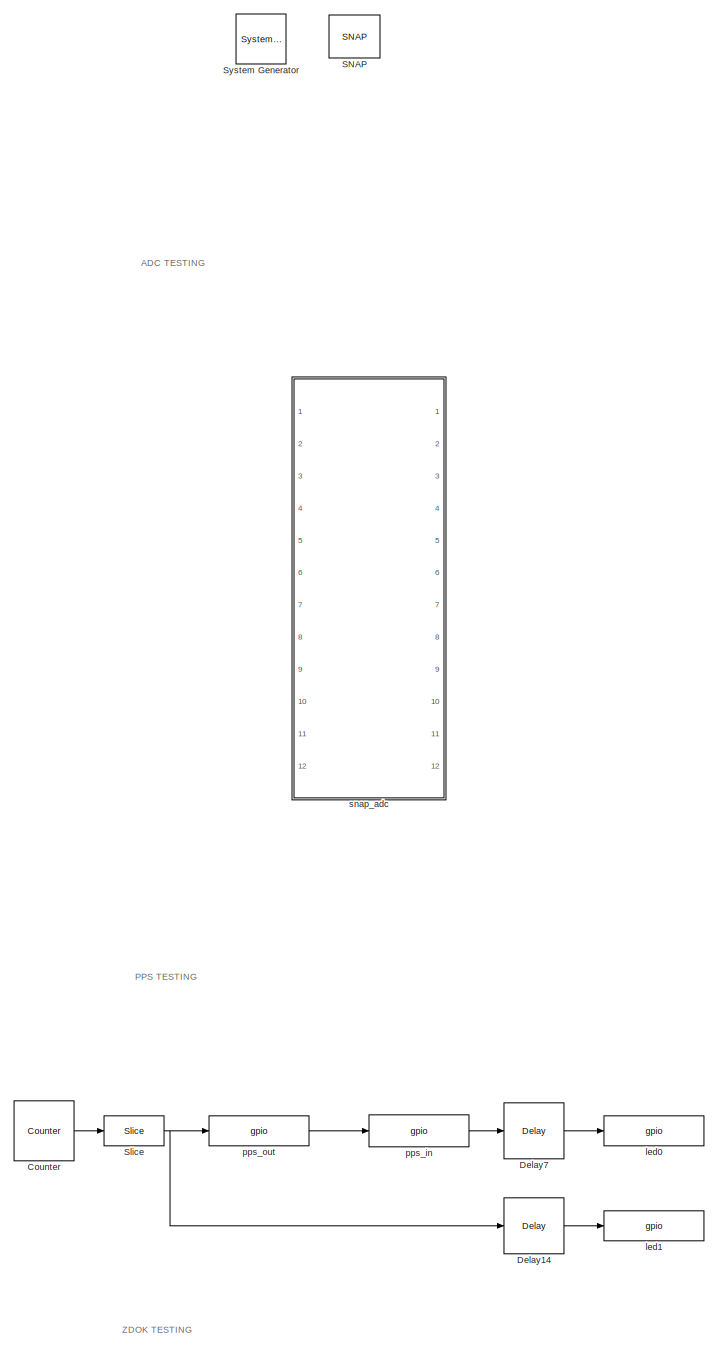
[diagram: root canvas - part 1/5, left side, full height]
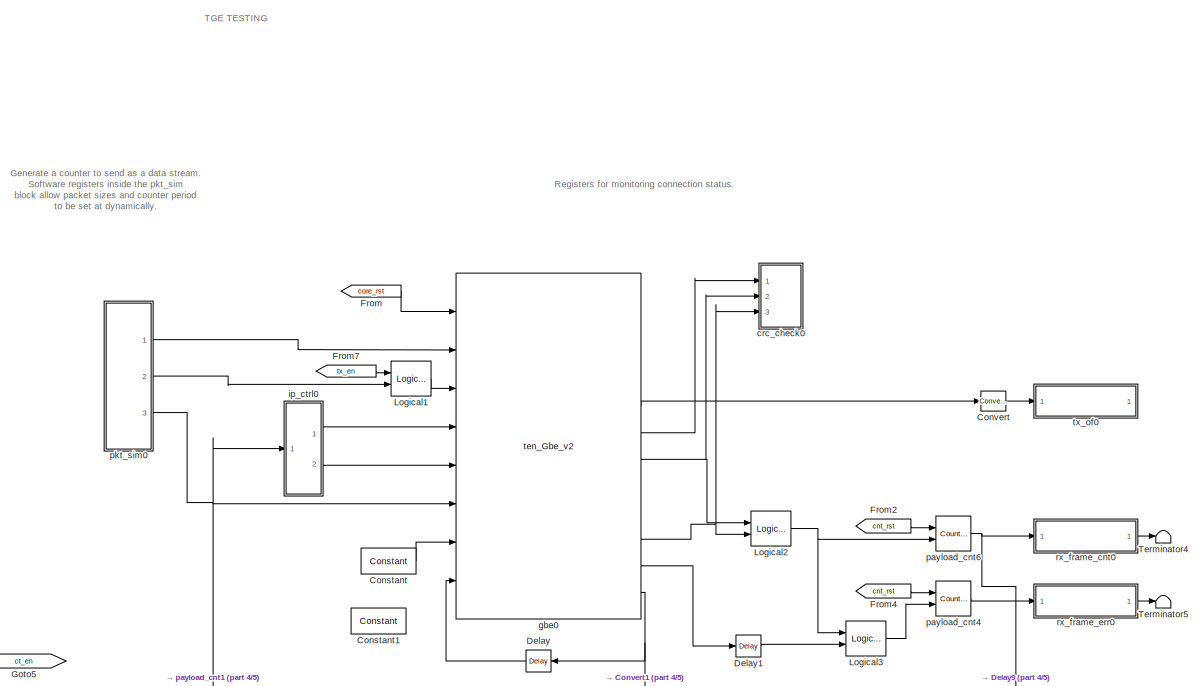
[diagram: root canvas - part 2/5, top right region]
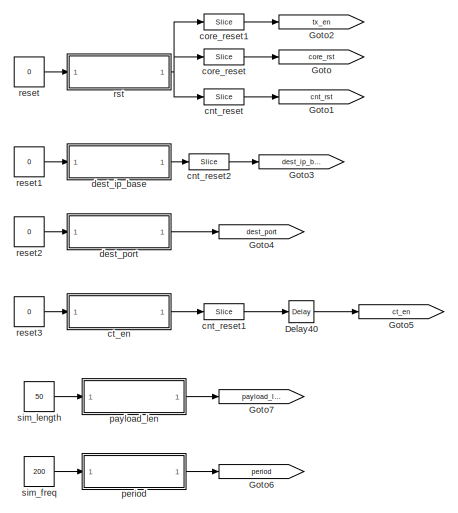
[diagram: root canvas - part 3/5, central region]
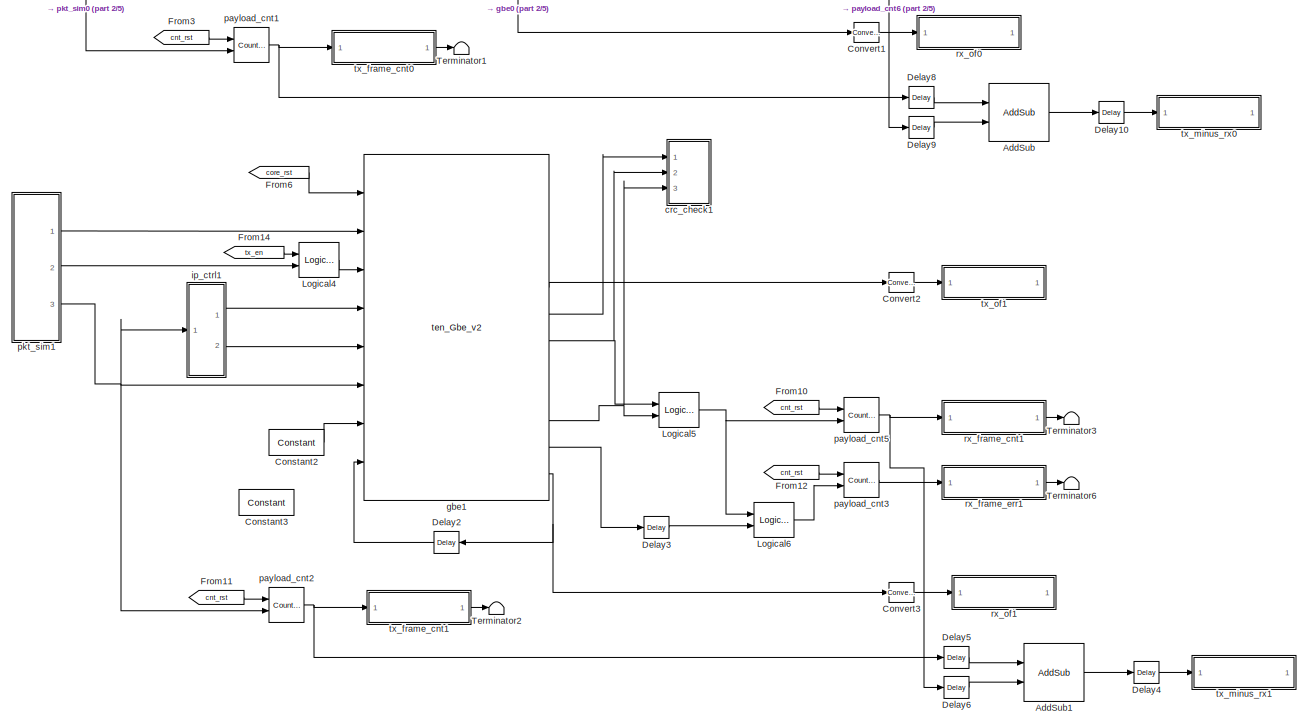
[diagram: root canvas - part 4/5, bottom right region]
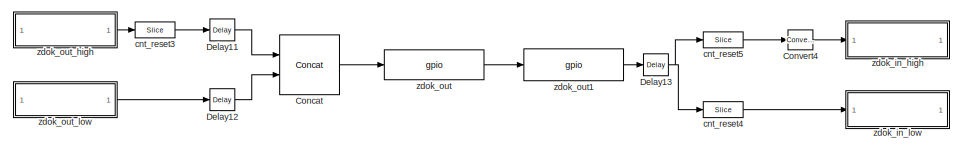
[diagram: root canvas - part 5/5, bottom left region]
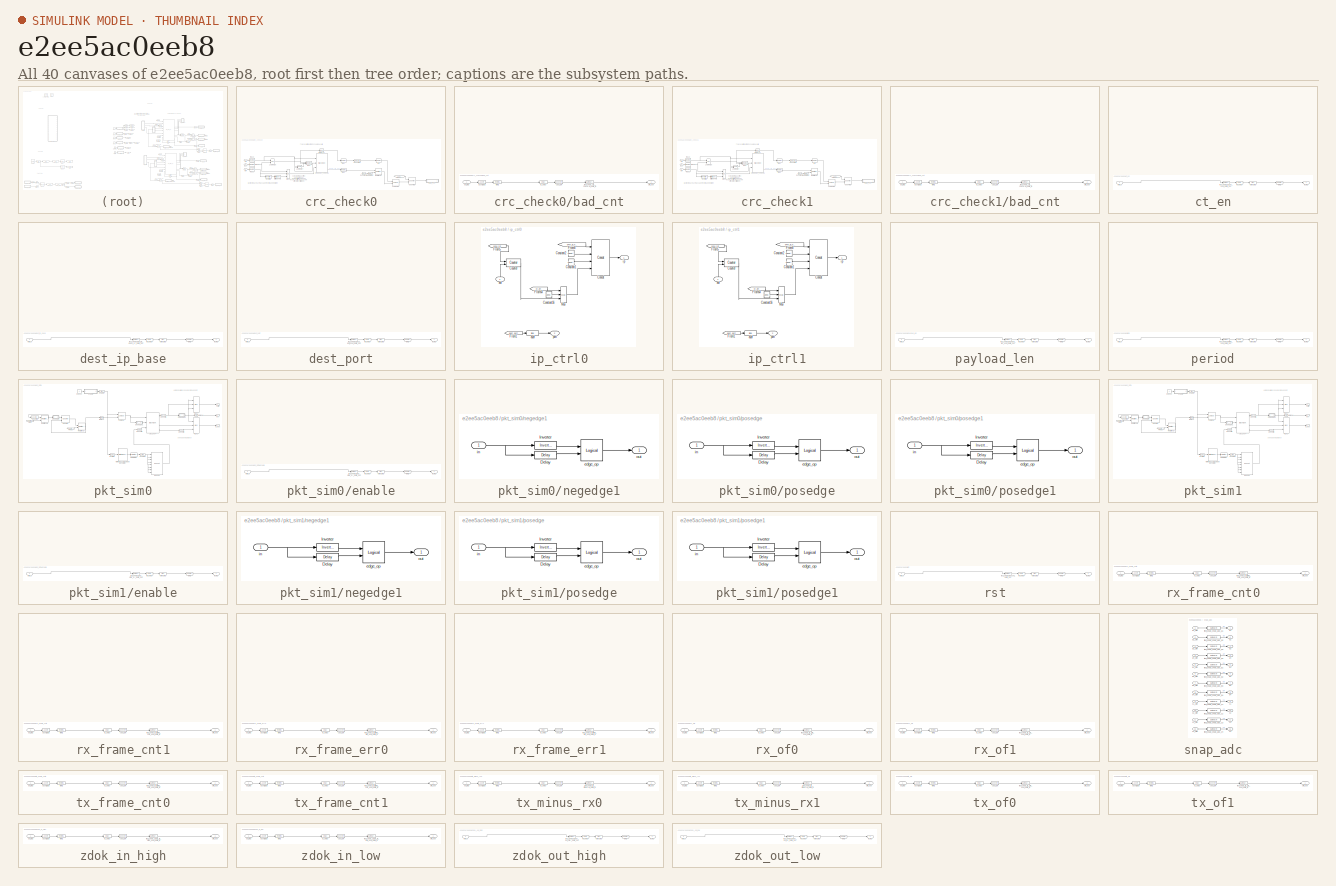
[diagram: thumbnail index - all 40 canvases of the model, root first then tree order]
MODEL slx_e2ee5ac0eeb8
KIND model
CONFIG AbsTol = auto
CONFIG EnableMultiTasking = on
CONFIG FixedStep = auto
CONFIG MaxStep = auto
CONFIG MinStep = auto
CONFIG RelTol = 1e-3
CONFIG SampleTimeConstraint = Unconstrained
CONFIG Solver = ode45
CONFIG SolverName = ode45
CONFIG StartTime = 0.0
CONFIG StopTime = 10.0
BLOCK [Reference]  System Generator  REF=xbsIndex_r4/ System Generator
  AttributesFormatString = System\nGenerator
  Ports = []
  SourceBlock = xbsIndex_r4/ System Generator
  SourceType = Xilinx System Generator Block
  Tag = genX
  UserDataPersistent = on
BLOCK [Reference] AddSub  REF=xbsIndex_r4/AddSub
  Ports = [2, 1]
  SourceBlock = xbsIndex_r4/AddSub
  SourceType = Xilinx Adder/Subtracter Block
BLOCK [Reference] AddSub1  REF=xbsIndex_r4/AddSub
  Ports = [2, 1]
  SourceBlock = xbsIndex_r4/AddSub
  SourceType = Xilinx Adder/Subtracter Block
BLOCK [Reference] Concat  REF=xbsIndex_r4/Concat
  Ports = [2, 1]
  SourceBlock = xbsIndex_r4/Concat
  SourceType = Xilinx Bus Concatenator Block
BLOCK [Reference] Constant  REF=xbsIndex_r4/Constant
  Ports = [0, 1]
  SourceBlock = xbsIndex_r4/Constant
  SourceType = Xilinx Constant Block Block
BLOCK [Reference] Constant1  REF=xbsIndex_r4/Constant
  Ports = [0, 1]
  SourceBlock = xbsIndex_r4/Constant
  SourceType = Xilinx Constant Block Block
BLOCK [Reference] Constant2  REF=xbsIndex_r4/Constant
  Ports = [0, 1]
  SourceBlock = xbsIndex_r4/Constant
  SourceType = Xilinx Constant Block Block
BLOCK [Reference] Constant3  REF=xbsIndex_r4/Constant
  Ports = [0, 1]
  SourceBlock = xbsIndex_r4/Constant
  SourceType = Xilinx Constant Block Block
BLOCK [Reference] Convert  REF=xbsIndex_r4/Convert
  Ports = [1, 1]
  SourceBlock = xbsIndex_r4/Convert
  SourceType = Xilinx Type Converter Block
BLOCK [Reference] Convert1  REF=xbsIndex_r4/Convert
  Ports = [1, 1]
  SourceBlock = xbsIndex_r4/Convert
  SourceType = Xilinx Type Converter Block
BLOCK [Reference] Convert2  REF=xbsIndex_r4/Convert
  Ports = [1, 1]
  SourceBlock = xbsIndex_r4/Convert
  SourceType = Xilinx Type Converter Block
BLOCK [Reference] Convert3  REF=xbsIndex_r4/Convert
  Ports = [1, 1]
  SourceBlock = xbsIndex_r4/Convert
  SourceType = Xilinx Type Converter Block
BLOCK [Reference] Convert4  REF=xbsIndex_r4/Convert
  Ports = [1, 1]
  SourceBlock = xbsIndex_r4/Convert
  SourceType = Xilinx Type Converter Block
BLOCK [Reference] Counter  REF=xbsIndex_r4/Counter
  Ports = [0, 1]
  SourceBlock = xbsIndex_r4/Counter
  SourceType = Xilinx Counter Block
BLOCK [Reference] Delay  REF=xbsIndex_r4/Delay
  Ports = [1, 1]
  SourceBlock = xbsIndex_r4/Delay
  SourceType = Xilinx Delay Block
BLOCK [Reference] Delay1  REF=xbsIndex_r4/Delay
  Ports = [1, 1]
  SourceBlock = xbsIndex_r4/Delay
  SourceType = Xilinx Delay Block
BLOCK [Reference] Delay10  REF=xbsIndex_r4/Delay
  Ports = [1, 1]
  SourceBlock = xbsIndex_r4/Delay
  SourceType = Xilinx Delay Block
BLOCK [Reference] Delay11  REF=xbsIndex_r4/Delay
  Ports = [1, 1]
  SourceBlock = xbsIndex_r4/Delay
  SourceType = Xilinx Delay Block
BLOCK [Reference] Delay12  REF=xbsIndex_r4/Delay
  Ports = [1, 1]
  SourceBlock = xbsIndex_r4/Delay
  SourceType = Xilinx Delay Block
BLOCK [Reference] Delay13  REF=xbsIndex_r4/Delay
  Ports = [1, 1]
  SourceBlock = xbsIndex_r4/Delay
  SourceType = Xilinx Delay Block
BLOCK [Reference] Delay14  REF=xbsIndex_r4/Delay
  Ports = [1, 1]
  SourceBlock = xbsIndex_r4/Delay
  SourceType = Xilinx Delay Block
BLOCK [Reference] Delay2  REF=xbsIndex_r4/Delay
  Ports = [1, 1]
  SourceBlock = xbsIndex_r4/Delay
  SourceType = Xilinx Delay Block
BLOCK [Reference] Delay3  REF=xbsIndex_r4/Delay
  Ports = [1, 1]
  SourceBlock = xbsIndex_r4/Delay
  SourceType = Xilinx Delay Block
BLOCK [Reference] Delay4  REF=xbsIndex_r4/Delay
  Ports = [1, 1]
  SourceBlock = xbsIndex_r4/Delay
  SourceType = Xilinx Delay Block
BLOCK [Reference] Delay40  REF=xbsIndex_r4/Delay
  Ports = [1, 1]
  SourceBlock = xbsIndex_r4/Delay
  SourceType = Xilinx Delay Block
BLOCK [Reference] Delay5  REF=xbsIndex_r4/Delay
  Ports = [1, 1]
  SourceBlock = xbsIndex_r4/Delay
  SourceType = Xilinx Delay Block
BLOCK [Reference] Delay6  REF=xbsIndex_r4/Delay
  Ports = [1, 1]
  SourceBlock = xbsIndex_r4/Delay
  SourceType = Xilinx Delay Block
BLOCK [Reference] Delay7  REF=xbsIndex_r4/Delay
  Ports = [1, 1]
  SourceBlock = xbsIndex_r4/Delay
  SourceType = Xilinx Delay Block
BLOCK [Reference] Delay8  REF=xbsIndex_r4/Delay
  Ports = [1, 1]
  SourceBlock = xbsIndex_r4/Delay
  SourceType = Xilinx Delay Block
BLOCK [Reference] Delay9  REF=xbsIndex_r4/Delay
  Ports = [1, 1]
  SourceBlock = xbsIndex_r4/Delay
  SourceType = Xilinx Delay Block
BLOCK [From] From
  GotoTag = core_rst
  TagVisibility = global
BLOCK [From] From10
  CloseFcn = tagdialog Close
  GotoTag = cnt_rst
  TagVisibility = global
BLOCK [From] From11
  CloseFcn = tagdialog Close
  GotoTag = cnt_rst
  TagVisibility = global
BLOCK [From] From12
  CloseFcn = tagdialog Close
  GotoTag = cnt_rst
  TagVisibility = global
BLOCK [From] From14
  GotoTag = tx_en
  TagVisibility = global
BLOCK [From] From2
  CloseFcn = tagdialog Close
  GotoTag = cnt_rst
  TagVisibility = global
BLOCK [From] From3
  CloseFcn = tagdialog Close
  GotoTag = cnt_rst
  TagVisibility = global
BLOCK [From] From4
  CloseFcn = tagdialog Close
  GotoTag = cnt_rst
  TagVisibility = global
BLOCK [From] From6
  GotoTag = core_rst
  TagVisibility = global
BLOCK [From] From7
  GotoTag = tx_en
  TagVisibility = global
BLOCK [Goto] Goto
  GotoTag = core_rst
  TagVisibility = global
BLOCK [Goto] Goto1
  GotoTag = cnt_rst
  TagVisibility = global
BLOCK [Goto] Goto2
  GotoTag = tx_en
  TagVisibility = global
BLOCK [Goto] Goto3
  GotoTag = dest_ip_base
  TagVisibility = global
BLOCK [Goto] Goto4
  GotoTag = dest_port
  TagVisibility = global
BLOCK [Goto] Goto5
  GotoTag = ct_en
  TagVisibility = global
BLOCK [Goto] Goto6
  GotoTag = period
  TagVisibility = global
BLOCK [Goto] Goto7
  GotoTag = payload_len
  TagVisibility = global
BLOCK [Reference] Logical1  REF=xbsIndex_r4/Logical
  Ports = [2, 1]
  SourceBlock = xbsIndex_r4/Logical
  SourceType = Xilinx Logical Block Block
BLOCK [Reference] Logical2  REF=xbsIndex_r4/Logical
  Ports = [2, 1]
  SourceBlock = xbsIndex_r4/Logical
  SourceType = Xilinx Logical Block Block
BLOCK [Reference] Logical3  REF=xbsIndex_r4/Logical
  Ports = [2, 1]
  SourceBlock = xbsIndex_r4/Logical
  SourceType = Xilinx Logical Block Block
BLOCK [Reference] Logical4  REF=xbsIndex_r4/Logical
  Ports = [2, 1]
  SourceBlock = xbsIndex_r4/Logical
  SourceType = Xilinx Logical Block Block
BLOCK [Reference] Logical5  REF=xbsIndex_r4/Logical
  Ports = [2, 1]
  SourceBlock = xbsIndex_r4/Logical
  SourceType = Xilinx Logical Block Block
BLOCK [Reference] Logical6  REF=xbsIndex_r4/Logical
  Ports = [2, 1]
  SourceBlock = xbsIndex_r4/Logical
  SourceType = Xilinx Logical Block Block
BLOCK [Reference] SNAP  REF=xps_library/platforms/SNAP  (lib defined in mdl_00b5cec29cd0, mdl_02ab6ecaa3d1, +5 more)
  Ports = []
  SourceBlock = xps_library/platforms/SNAP
  SourceType = xsg core config
  Tag = xps:xsg
BLOCK [Reference] Slice  REF=xbsIndex_r4/Slice
  Ports = [1, 1]
  SourceBlock = xbsIndex_r4/Slice
  SourceType = Xilinx Bit Slice Extractor Block
BLOCK [Terminator] Terminator1
BLOCK [Terminator] Terminator2
BLOCK [Terminator] Terminator3
BLOCK [Terminator] Terminator4
BLOCK [Terminator] Terminator5
BLOCK [Terminator] Terminator6
BLOCK [Reference] cnt_reset  REF=xbsIndex_r4/Slice
  Ports = [1, 1]
  SourceBlock = xbsIndex_r4/Slice
  SourceType = Xilinx Bit Slice Extractor Block
BLOCK [Reference] cnt_reset1  REF=xbsIndex_r4/Slice
  Ports = [1, 1]
  SourceBlock = xbsIndex_r4/Slice
  SourceType = Xilinx Bit Slice Extractor Block
BLOCK [Reference] cnt_reset2  REF=xbsIndex_r4/Slice
  Ports = [1, 1]
  SourceBlock = xbsIndex_r4/Slice
  SourceType = Xilinx Bit Slice Extractor Block
BLOCK [Reference] cnt_reset3  REF=xbsIndex_r4/Slice
  Ports = [1, 1]
  SourceBlock = xbsIndex_r4/Slice
  SourceType = Xilinx Bit Slice Extractor Block
BLOCK [Reference] cnt_reset4  REF=xbsIndex_r4/Slice
  Ports = [1, 1]
  SourceBlock = xbsIndex_r4/Slice
  SourceType = Xilinx Bit Slice Extractor Block
BLOCK [Reference] cnt_reset5  REF=xbsIndex_r4/Slice
  Ports = [1, 1]
  SourceBlock = xbsIndex_r4/Slice
  SourceType = Xilinx Bit Slice Extractor Block
BLOCK [Reference] core_reset  REF=xbsIndex_r4/Slice
  Ports = [1, 1]
  SourceBlock = xbsIndex_r4/Slice
  SourceType = Xilinx Bit Slice Extractor Block
BLOCK [Reference] core_reset1  REF=xbsIndex_r4/Slice
  Ports = [1, 1]
  SourceBlock = xbsIndex_r4/Slice
  SourceType = Xilinx Bit Slice Extractor Block
BLOCK [SubSystem] crc_check0
  Ports = [3]
  RequestExecContextInheritance = off
  Variant = off
BLOCK [Reference] crc_check0/BitBasher1  REF=xbsIndex_r4/BitBasher
  Ports = [1, 1]
  SourceBlock = xbsIndex_r4/BitBasher
  SourceType = Xilinx BitBasher Block
BLOCK [Reference] crc_check0/Constant8  REF=xbsIndex_r4/Constant
  Ports = [0, 1]
  SourceBlock = xbsIndex_r4/Constant
  SourceType = Xilinx Constant Block Block
BLOCK [Reference] crc_check0/Convert16  REF=xbsIndex_r4/Convert
  Ports = [1, 1]
  SourceBlock = xbsIndex_r4/Convert
  SourceType = Xilinx Type Converter Block
BLOCK [Reference] crc_check0/Counter1  REF=xbsIndex_r4/Counter
  Ports = [2, 1]
  SourceBlock = xbsIndex_r4/Counter
  SourceType = Xilinx Counter Block
BLOCK [Reference] crc_check0/Delay41  REF=xbsIndex_r4/Delay
  Ports = [1, 1]
  SourceBlock = xbsIndex_r4/Delay
  SourceType = Xilinx Delay Block
BLOCK [From] crc_check0/From40
  CloseFcn = tagdialog Close
  GotoTag = cnt_rst
  TagVisibility = global
BLOCK [Reference] crc_check0/Inverter1  REF=xbsIndex_r4/Inverter
  Ports = [1, 1]
  SourceBlock = xbsIndex_r4/Inverter
  SourceType = Xilinx Inverter Block
BLOCK [Reference] crc_check0/Logical25  REF=xbsIndex_r4/Logical
  Ports = [2, 1]
  SourceBlock = xbsIndex_r4/Logical
  SourceType = Xilinx Logical Block Block
BLOCK [Reference] crc_check0/Logical26  REF=xbsIndex_r4/Logical
  Ports = [2, 1]
  SourceBlock = xbsIndex_r4/Logical
  SourceType = Xilinx Logical Block Block
BLOCK [Reference] crc_check0/Logical27  REF=xbsIndex_r4/Logical
  Ports = [2, 1]
  SourceBlock = xbsIndex_r4/Logical
  SourceType = Xilinx Logical Block Block
BLOCK [Reference] crc_check0/Mux2  REF=xbsIndex_r4/Mux
  Ports = [3, 1]
  SourceBlock = xbsIndex_r4/Mux
  SourceType = Xilinx Bus Multiplexer Block
BLOCK [Reference] crc_check0/Reinterpret  REF=xbsIndex_r4/Reinterpret
  Ports = [1, 1]
  SourceBlock = xbsIndex_r4/Reinterpret
  SourceType = Xilinx Type Reinterpreter Block
BLOCK [Reference] crc_check0/Relational  REF=xbsIndex_r4/Relational
  Ports = [2, 1]
  SourceBlock = xbsIndex_r4/Relational
  SourceType = Xilinx Arithmetic Relational Operator Block
BLOCK [SubSystem] crc_check0/bad_cnt
  AncestorBlock = xps_library/software register
  AttributesFormatString = 1output
  Ports = [1, 1]
  RequestExecContextInheritance = off
  Tag = xps:sw_reg
  Variant = off
BLOCK [Reference] crc_check0/bad_cnt/assert_reg  REF=xbsIndex_r4/Assert
  Ports = [1, 1]
  SourceBlock = xbsIndex_r4/Assert
  SourceType = Xilinx Assert Block
BLOCK [Reference] crc_check0/bad_cnt/cast_gw  REF=xbsIndex_r4/Convert
  Ports = [1, 1]
  SourceBlock = xbsIndex_r4/Convert
  SourceType = Xilinx Type Converter Block
BLOCK [Reference] crc_check0/bad_cnt/io_delay  REF=xbsIndex_r4/Delay
  Ports = [1, 1]
  SourceBlock = xbsIndex_r4/Delay
  SourceType = Xilinx Delay Block
BLOCK [Inport] crc_check0/bad_cnt/out_reg
  IconDisplay = Port number
BLOCK [Reference] crc_check0/bad_cnt/reint1  REF=xbsIndex_r4/Reinterpret
  Ports = [1, 1]
  SourceBlock = xbsIndex_r4/Reinterpret
  SourceType = Xilinx Type Reinterpreter Block
BLOCK [Outport] crc_check0/bad_cnt/sim_out
  IconDisplay = Port number
BLOCK [Reference] crc_check0/bad_cnt/test_snap_crc_check0_bad_cnt_user_data_in  REF=xbsIndex_r4/Gateway Out
  Ports = [1, 1]
  SourceBlock = xbsIndex_r4/Gateway Out
  SourceType = Xilinx Gateway Out Block
BLOCK [Reference] crc_check0/crc32x64_check1  REF=xbsIndex_r4/Black Box
  Ports = [3, 4]
  SourceBlock = xbsIndex_r4/Black Box
  SourceType = Xilinx Black Box Block
BLOCK [Inport] crc_check0/din
  IconDisplay = Port number
BLOCK [Inport] crc_check0/eof
  IconDisplay = Port number
  Port = 3
BLOCK [Reference] crc_check0/reg  REF=xbsIndex_r4/Register
  Ports = [1, 1]
  SourceBlock = xbsIndex_r4/Register
  SourceType = Xilinx Register Block
BLOCK [Reference] crc_check0/reg1  REF=xbsIndex_r4/Register
  Ports = [1, 1]
  SourceBlock = xbsIndex_r4/Register
  SourceType = Xilinx Register Block
BLOCK [Reference] crc_check0/reg11  REF=xbsIndex_r4/Register
  Ports = [1, 1]
  SourceBlock = xbsIndex_r4/Register
  SourceType = Xilinx Register Block
BLOCK [Reference] crc_check0/reg12  REF=xbsIndex_r4/Register
  Ports = [1, 1]
  SourceBlock = xbsIndex_r4/Register
  SourceType = Xilinx Register Block
BLOCK [Reference] crc_check0/reg13  REF=xbsIndex_r4/Register
  Ports = [1, 1]
  SourceBlock = xbsIndex_r4/Register
  SourceType = Xilinx Register Block
BLOCK [Reference] crc_check0/reg2  REF=xbsIndex_r4/Register
  Ports = [1, 1]
  SourceBlock = xbsIndex_r4/Register
  SourceType = Xilinx Register Block
BLOCK [Reference] crc_check0/reg3  REF=xbsIndex_r4/Register
  Ports = [3, 1]
  SourceBlock = xbsIndex_r4/Register
  SourceType = Xilinx Register Block
BLOCK [Inport] crc_check0/vld
  IconDisplay = Port number
  Port = 2
BLOCK [SubSystem] crc_check1
  Ports = [3]
  RequestExecContextInheritance = off
  Variant = off
BLOCK [Reference] crc_check1/BitBasher1  REF=xbsIndex_r4/BitBasher
  Ports = [1, 1]
  SourceBlock = xbsIndex_r4/BitBasher
  SourceType = Xilinx BitBasher Block
BLOCK [Reference] crc_check1/Constant8  REF=xbsIndex_r4/Constant
  Ports = [0, 1]
  SourceBlock = xbsIndex_r4/Constant
  SourceType = Xilinx Constant Block Block
BLOCK [Reference] crc_check1/Convert16  REF=xbsIndex_r4/Convert
  Ports = [1, 1]
  SourceBlock = xbsIndex_r4/Convert
  SourceType = Xilinx Type Converter Block
BLOCK [Reference] crc_check1/Counter1  REF=xbsIndex_r4/Counter
  Ports = [2, 1]
  SourceBlock = xbsIndex_r4/Counter
  SourceType = Xilinx Counter Block
BLOCK [Reference] crc_check1/Delay41  REF=xbsIndex_r4/Delay
  Ports = [1, 1]
  SourceBlock = xbsIndex_r4/Delay
  SourceType = Xilinx Delay Block
BLOCK [From] crc_check1/From40
  CloseFcn = tagdialog Close
  GotoTag = cnt_rst
  TagVisibility = global
BLOCK [Reference] crc_check1/Inverter1  REF=xbsIndex_r4/Inverter
  Ports = [1, 1]
  SourceBlock = xbsIndex_r4/Inverter
  SourceType = Xilinx Inverter Block
BLOCK [Reference] crc_check1/Logical25  REF=xbsIndex_r4/Logical
  Ports = [2, 1]
  SourceBlock = xbsIndex_r4/Logical
  SourceType = Xilinx Logical Block Block
BLOCK [Reference] crc_check1/Logical26  REF=xbsIndex_r4/Logical
  Ports = [2, 1]
  SourceBlock = xbsIndex_r4/Logical
  SourceType = Xilinx Logical Block Block
BLOCK [Reference] crc_check1/Logical27  REF=xbsIndex_r4/Logical
  Ports = [2, 1]
  SourceBlock = xbsIndex_r4/Logical
  SourceType = Xilinx Logical Block Block
BLOCK [Reference] crc_check1/Mux2  REF=xbsIndex_r4/Mux
  Ports = [3, 1]
  SourceBlock = xbsIndex_r4/Mux
  SourceType = Xilinx Bus Multiplexer Block
BLOCK [Reference] crc_check1/Reinterpret  REF=xbsIndex_r4/Reinterpret
  Ports = [1, 1]
  SourceBlock = xbsIndex_r4/Reinterpret
  SourceType = Xilinx Type Reinterpreter Block
BLOCK [Reference] crc_check1/Relational  REF=xbsIndex_r4/Relational
  Ports = [2, 1]
  SourceBlock = xbsIndex_r4/Relational
  SourceType = Xilinx Arithmetic Relational Operator Block
BLOCK [SubSystem] crc_check1/bad_cnt
  AncestorBlock = xps_library/software register
  AttributesFormatString = 1output
  Ports = [1, 1]
  RequestExecContextInheritance = off
  Tag = xps:sw_reg
  Variant = off
BLOCK [Reference] crc_check1/bad_cnt/assert_reg  REF=xbsIndex_r4/Assert
  Ports = [1, 1]
  SourceBlock = xbsIndex_r4/Assert
  SourceType = Xilinx Assert Block
BLOCK [Reference] crc_check1/bad_cnt/cast_gw  REF=xbsIndex_r4/Convert
  Ports = [1, 1]
  SourceBlock = xbsIndex_r4/Convert
  SourceType = Xilinx Type Converter Block
BLOCK [Reference] crc_check1/bad_cnt/io_delay  REF=xbsIndex_r4/Delay
  Ports = [1, 1]
  SourceBlock = xbsIndex_r4/Delay
  SourceType = Xilinx Delay Block
BLOCK [Inport] crc_check1/bad_cnt/out_reg
  IconDisplay = Port number
BLOCK [Reference] crc_check1/bad_cnt/reint1  REF=xbsIndex_r4/Reinterpret
  Ports = [1, 1]
  SourceBlock = xbsIndex_r4/Reinterpret
  SourceType = Xilinx Type Reinterpreter Block
BLOCK [Outport] crc_check1/bad_cnt/sim_out
  IconDisplay = Port number
BLOCK [Reference] crc_check1/bad_cnt/test_snap_crc_check1_bad_cnt_user_data_in  REF=xbsIndex_r4/Gateway Out
  Ports = [1, 1]
  SourceBlock = xbsIndex_r4/Gateway Out
  SourceType = Xilinx Gateway Out Block
BLOCK [Reference] crc_check1/crc32x64_check1  REF=xbsIndex_r4/Black Box
  Ports = [3, 4]
  SourceBlock = xbsIndex_r4/Black Box
  SourceType = Xilinx Black Box Block
BLOCK [Inport] crc_check1/din
  IconDisplay = Port number
BLOCK [Inport] crc_check1/eof
  IconDisplay = Port number
  Port = 3
BLOCK [Reference] crc_check1/reg  REF=xbsIndex_r4/Register
  Ports = [1, 1]
  SourceBlock = xbsIndex_r4/Register
  SourceType = Xilinx Register Block
BLOCK [Reference] crc_check1/reg1  REF=xbsIndex_r4/Register
  Ports = [1, 1]
  SourceBlock = xbsIndex_r4/Register
  SourceType = Xilinx Register Block
BLOCK [Reference] crc_check1/reg11  REF=xbsIndex_r4/Register
  Ports = [1, 1]
  SourceBlock = xbsIndex_r4/Register
  SourceType = Xilinx Register Block
BLOCK [Reference] crc_check1/reg12  REF=xbsIndex_r4/Register
  Ports = [1, 1]
  SourceBlock = xbsIndex_r4/Register
  SourceType = Xilinx Register Block
BLOCK [Reference] crc_check1/reg13  REF=xbsIndex_r4/Register
  Ports = [1, 1]
  SourceBlock = xbsIndex_r4/Register
  SourceType = Xilinx Register Block
BLOCK [Reference] crc_check1/reg2  REF=xbsIndex_r4/Register
  Ports = [1, 1]
  SourceBlock = xbsIndex_r4/Register
  SourceType = Xilinx Register Block
BLOCK [Reference] crc_check1/reg3  REF=xbsIndex_r4/Register
  Ports = [3, 1]
  SourceBlock = xbsIndex_r4/Register
  SourceType = Xilinx Register Block
BLOCK [Inport] crc_check1/vld
  IconDisplay = Port number
  Port = 2
BLOCK [SubSystem] ct_en
  AncestorBlock = xps_library/software register
  AttributesFormatString = 1input
  Ports = [1, 1]
  RequestExecContextInheritance = off
  Tag = xps:sw_reg
  Variant = off
BLOCK [Outport] ct_en/in_reg
  IconDisplay = Port number
BLOCK [Reference] ct_en/io_delay  REF=xbsIndex_r4/Delay
  Ports = [1, 1]
  SourceBlock = xbsIndex_r4/Delay
  SourceType = Xilinx Delay Block
BLOCK [Reference] ct_en/reint1  REF=xbsIndex_r4/Reinterpret
  Ports = [1, 1]
  SourceBlock = xbsIndex_r4/Reinterpret
  SourceType = Xilinx Type Reinterpreter Block
BLOCK [Inport] ct_en/sim_1
  IconDisplay = Port number
BLOCK [Reference] ct_en/slice_reg  REF=xbsIndex_r4/Slice
  Ports = [1, 1]
  SourceBlock = xbsIndex_r4/Slice
  SourceType = Xilinx Bit Slice Extractor Block
BLOCK [Reference] ct_en/test_snap_ct_en_user_data_out  REF=xbsIndex_r4/Gateway In
  Ports = [1, 1]
  SourceBlock = xbsIndex_r4/Gateway In
  SourceType = Xilinx Gateway In Block
BLOCK [SubSystem] dest_ip_base
  AncestorBlock = xps_library/software register
  AttributesFormatString = 1input
  Ports = [1, 1]
  RequestExecContextInheritance = off
  Tag = xps:sw_reg
  Variant = off
BLOCK [Outport] dest_ip_base/in_reg
  IconDisplay = Port number
BLOCK [Reference] dest_ip_base/io_delay  REF=xbsIndex_r4/Delay
  Ports = [1, 1]
  SourceBlock = xbsIndex_r4/Delay
  SourceType = Xilinx Delay Block
BLOCK [Reference] dest_ip_base/reint1  REF=xbsIndex_r4/Reinterpret
  Ports = [1, 1]
  SourceBlock = xbsIndex_r4/Reinterpret
  SourceType = Xilinx Type Reinterpreter Block
BLOCK [Inport] dest_ip_base/sim_1
  IconDisplay = Port number
BLOCK [Reference] dest_ip_base/slice_reg  REF=xbsIndex_r4/Slice
  Ports = [1, 1]
  SourceBlock = xbsIndex_r4/Slice
  SourceType = Xilinx Bit Slice Extractor Block
BLOCK [Reference] dest_ip_base/test_snap_dest_ip_base_user_data_out  REF=xbsIndex_r4/Gateway In
  Ports = [1, 1]
  SourceBlock = xbsIndex_r4/Gateway In
  SourceType = Xilinx Gateway In Block
BLOCK [SubSystem] dest_port
  AncestorBlock = xps_library/software register
  AttributesFormatString = 1input
  Ports = [1, 1]
  RequestExecContextInheritance = off
  Tag = xps:sw_reg
  Variant = off
BLOCK [Outport] dest_port/in_reg
  IconDisplay = Port number
BLOCK [Reference] dest_port/io_delay  REF=xbsIndex_r4/Delay
  Ports = [1, 1]
  SourceBlock = xbsIndex_r4/Delay
  SourceType = Xilinx Delay Block
BLOCK [Reference] dest_port/reint1  REF=xbsIndex_r4/Reinterpret
  Ports = [1, 1]
  SourceBlock = xbsIndex_r4/Reinterpret
  SourceType = Xilinx Type Reinterpreter Block
BLOCK [Inport] dest_port/sim_1
  IconDisplay = Port number
BLOCK [Reference] dest_port/slice_reg  REF=xbsIndex_r4/Slice
  Ports = [1, 1]
  SourceBlock = xbsIndex_r4/Slice
  SourceType = Xilinx Bit Slice Extractor Block
BLOCK [Reference] dest_port/test_snap_dest_port_user_data_out  REF=xbsIndex_r4/Gateway In
  Ports = [1, 1]
  SourceBlock = xbsIndex_r4/Gateway In
  SourceType = Xilinx Gateway In Block
BLOCK [Reference] gbe0  REF=xps_library/ten_Gbe_v2  (lib defined in mdl_00b5cec29cd0, mdl_02ab6ecaa3d1, +5 more)
  Ports = [8, 12]
  SourceBlock = xps_library/ten_Gbe_v2
  SourceType = ten_GbE_v2
  Tag = xps:tengbe_v2
BLOCK [Reference] gbe1  REF=xps_library/ten_Gbe_v2  (lib defined in mdl_00b5cec29cd0, mdl_02ab6ecaa3d1, +5 more)
  Ports = [8, 12]
  SourceBlock = xps_library/ten_Gbe_v2
  SourceType = ten_GbE_v2
  Tag = xps:tengbe_v2
BLOCK [SubSystem] ip_ctrl0
  Ports = [1, 2]
  RequestExecContextInheritance = off
  Variant = off
BLOCK [Reference] ip_ctrl0/Concat  REF=xbsIndex_r4/Concat
  Ports = [4, 1]
  SourceBlock = xbsIndex_r4/Concat
  SourceType = Xilinx Bus Concatenator Block
BLOCK [Reference] ip_ctrl0/Constant1  REF=xbsIndex_r4/Constant
  Ports = [0, 1]
  SourceBlock = xbsIndex_r4/Constant
  SourceType = Xilinx Constant Block Block
BLOCK [Reference] ip_ctrl0/Constant16  REF=xbsIndex_r4/Constant
  Ports = [0, 1]
  SourceBlock = xbsIndex_r4/Constant
  SourceType = Xilinx Constant Block Block
BLOCK [Reference] ip_ctrl0/Constant2  REF=xbsIndex_r4/Constant
  Ports = [0, 1]
  SourceBlock = xbsIndex_r4/Constant
  SourceType = Xilinx Constant Block Block
BLOCK [Reference] ip_ctrl0/Counter  REF=xbsIndex_r4/Counter
  Ports = [2, 1]
  SourceBlock = xbsIndex_r4/Counter
  SourceType = Xilinx Counter Block
BLOCK [From] ip_ctrl0/From1
  GotoTag = dest_port
  TagVisibility = global
BLOCK [From] ip_ctrl0/From5
  GotoTag = core_rst
  TagVisibility = global
BLOCK [From] ip_ctrl0/From64
  GotoTag = ct_en
  TagVisibility = global
BLOCK [From] ip_ctrl0/From8
  GotoTag = dest_ip_base
  TagVisibility = global
BLOCK [Reference] ip_ctrl0/Mux  REF=xbsIndex_r4/Mux
  Ports = [3, 1]
  SourceBlock = xbsIndex_r4/Mux
  SourceType = Xilinx Bus Multiplexer Block
BLOCK [Reference] ip_ctrl0/asdf  REF=xbsIndex_r4/Slice
  Ports = [1, 1]
  SourceBlock = xbsIndex_r4/Slice
  SourceType = Xilinx Bit Slice Extractor Block
BLOCK [Inport] ip_ctrl0/eof
  IconDisplay = Port number
BLOCK [Outport] ip_ctrl0/ip
  IconDisplay = Port number
BLOCK [Outport] ip_ctrl0/port
  IconDisplay = Port number
  Port = 2
BLOCK [SubSystem] ip_ctrl1
  Ports = [1, 2]
  RequestExecContextInheritance = off
  Variant = off
BLOCK [Reference] ip_ctrl1/Concat  REF=xbsIndex_r4/Concat
  Ports = [4, 1]
  SourceBlock = xbsIndex_r4/Concat
  SourceType = Xilinx Bus Concatenator Block
BLOCK [Reference] ip_ctrl1/Constant1  REF=xbsIndex_r4/Constant
  Ports = [0, 1]
  SourceBlock = xbsIndex_r4/Constant
  SourceType = Xilinx Constant Block Block
BLOCK [Reference] ip_ctrl1/Constant16  REF=xbsIndex_r4/Constant
  Ports = [0, 1]
  SourceBlock = xbsIndex_r4/Constant
  SourceType = Xilinx Constant Block Block
BLOCK [Reference] ip_ctrl1/Constant2  REF=xbsIndex_r4/Constant
  Ports = [0, 1]
  SourceBlock = xbsIndex_r4/Constant
  SourceType = Xilinx Constant Block Block
BLOCK [Reference] ip_ctrl1/Counter  REF=xbsIndex_r4/Counter
  Ports = [2, 1]
  SourceBlock = xbsIndex_r4/Counter
  SourceType = Xilinx Counter Block
BLOCK [From] ip_ctrl1/From1
  GotoTag = dest_port
  TagVisibility = global
BLOCK [From] ip_ctrl1/From5
  GotoTag = core_rst
  TagVisibility = global
BLOCK [From] ip_ctrl1/From64
  GotoTag = ct_en
  TagVisibility = global
BLOCK [From] ip_ctrl1/From8
  GotoTag = dest_ip_base
  TagVisibility = global
BLOCK [Reference] ip_ctrl1/Mux  REF=xbsIndex_r4/Mux
  Ports = [3, 1]
  SourceBlock = xbsIndex_r4/Mux
  SourceType = Xilinx Bus Multiplexer Block
BLOCK [Reference] ip_ctrl1/asdf  REF=xbsIndex_r4/Slice
  Ports = [1, 1]
  SourceBlock = xbsIndex_r4/Slice
  SourceType = Xilinx Bit Slice Extractor Block
BLOCK [Inport] ip_ctrl1/eof
  IconDisplay = Port number
BLOCK [Outport] ip_ctrl1/ip
  IconDisplay = Port number
BLOCK [Outport] ip_ctrl1/port
  IconDisplay = Port number
  Port = 2
BLOCK [Reference] led0  REF=xps_library/gpio  (lib defined in mdl_00b5cec29cd0, mdl_02ab6ecaa3d1, +5 more)
  Ports = [1, 1]
  SourceBlock = xps_library/gpio
  SourceType = gpio
  Tag = xps:gpio
BLOCK [Reference] led1  REF=xps_library/gpio  (lib defined in mdl_00b5cec29cd0, mdl_02ab6ecaa3d1, +5 more)
  Ports = [1, 1]
  SourceBlock = xps_library/gpio
  SourceType = gpio
  Tag = xps:gpio
BLOCK [Reference] payload_cnt1  REF=xbsIndex_r4/Counter
  Ports = [2, 1]
  SourceBlock = xbsIndex_r4/Counter
  SourceType = Xilinx Counter Block
BLOCK [Reference] payload_cnt2  REF=xbsIndex_r4/Counter
  Ports = [2, 1]
  SourceBlock = xbsIndex_r4/Counter
  SourceType = Xilinx Counter Block
BLOCK [Reference] payload_cnt3  REF=xbsIndex_r4/Counter
  Ports = [2, 1]
  SourceBlock = xbsIndex_r4/Counter
  SourceType = Xilinx Counter Block
BLOCK [Reference] payload_cnt4  REF=xbsIndex_r4/Counter
  Ports = [2, 1]
  SourceBlock = xbsIndex_r4/Counter
  SourceType = Xilinx Counter Block
BLOCK [Reference] payload_cnt5  REF=xbsIndex_r4/Counter
  Ports = [2, 1]
  SourceBlock = xbsIndex_r4/Counter
  SourceType = Xilinx Counter Block
BLOCK [Reference] payload_cnt6  REF=xbsIndex_r4/Counter
  Ports = [2, 1]
  SourceBlock = xbsIndex_r4/Counter
  SourceType = Xilinx Counter Block
BLOCK [SubSystem] payload_len
  AncestorBlock = xps_library/software register
  AttributesFormatString = 1input
  Ports = [1, 1]
  RequestExecContextInheritance = off
  Tag = xps:sw_reg
  Variant = off
BLOCK [Outport] payload_len/in_reg
  IconDisplay = Port number
BLOCK [Reference] payload_len/io_delay  REF=xbsIndex_r4/Delay
  Ports = [1, 1]
  SourceBlock = xbsIndex_r4/Delay
  SourceType = Xilinx Delay Block
BLOCK [Reference] payload_len/reint1  REF=xbsIndex_r4/Reinterpret
  Ports = [1, 1]
  SourceBlock = xbsIndex_r4/Reinterpret
  SourceType = Xilinx Type Reinterpreter Block
BLOCK [Inport] payload_len/sim_1
  IconDisplay = Port number
BLOCK [Reference] payload_len/slice_reg  REF=xbsIndex_r4/Slice
  Ports = [1, 1]
  SourceBlock = xbsIndex_r4/Slice
  SourceType = Xilinx Bit Slice Extractor Block
BLOCK [Reference] payload_len/test_snap_payload_len_user_data_out  REF=xbsIndex_r4/Gateway In
  Ports = [1, 1]
  SourceBlock = xbsIndex_r4/Gateway In
  SourceType = Xilinx Gateway In Block
BLOCK [SubSystem] period
  AncestorBlock = xps_library/software register
  AttributesFormatString = 1input
  Ports = [1, 1]
  RequestExecContextInheritance = off
  Tag = xps:sw_reg
  Variant = off
BLOCK [Outport] period/in_reg
  IconDisplay = Port number
BLOCK [Reference] period/io_delay  REF=xbsIndex_r4/Delay
  Ports = [1, 1]
  SourceBlock = xbsIndex_r4/Delay
  SourceType = Xilinx Delay Block
BLOCK [Reference] period/reint1  REF=xbsIndex_r4/Reinterpret
  Ports = [1, 1]
  SourceBlock = xbsIndex_r4/Reinterpret
  SourceType = Xilinx Type Reinterpreter Block
BLOCK [Inport] period/sim_1
  IconDisplay = Port number
BLOCK [Reference] period/slice_reg  REF=xbsIndex_r4/Slice
  Ports = [1, 1]
  SourceBlock = xbsIndex_r4/Slice
  SourceType = Xilinx Bit Slice Extractor Block
BLOCK [Reference] period/test_snap_period_user_data_out  REF=xbsIndex_r4/Gateway In
  Ports = [1, 1]
  SourceBlock = xbsIndex_r4/Gateway In
  SourceType = Xilinx Gateway In Block
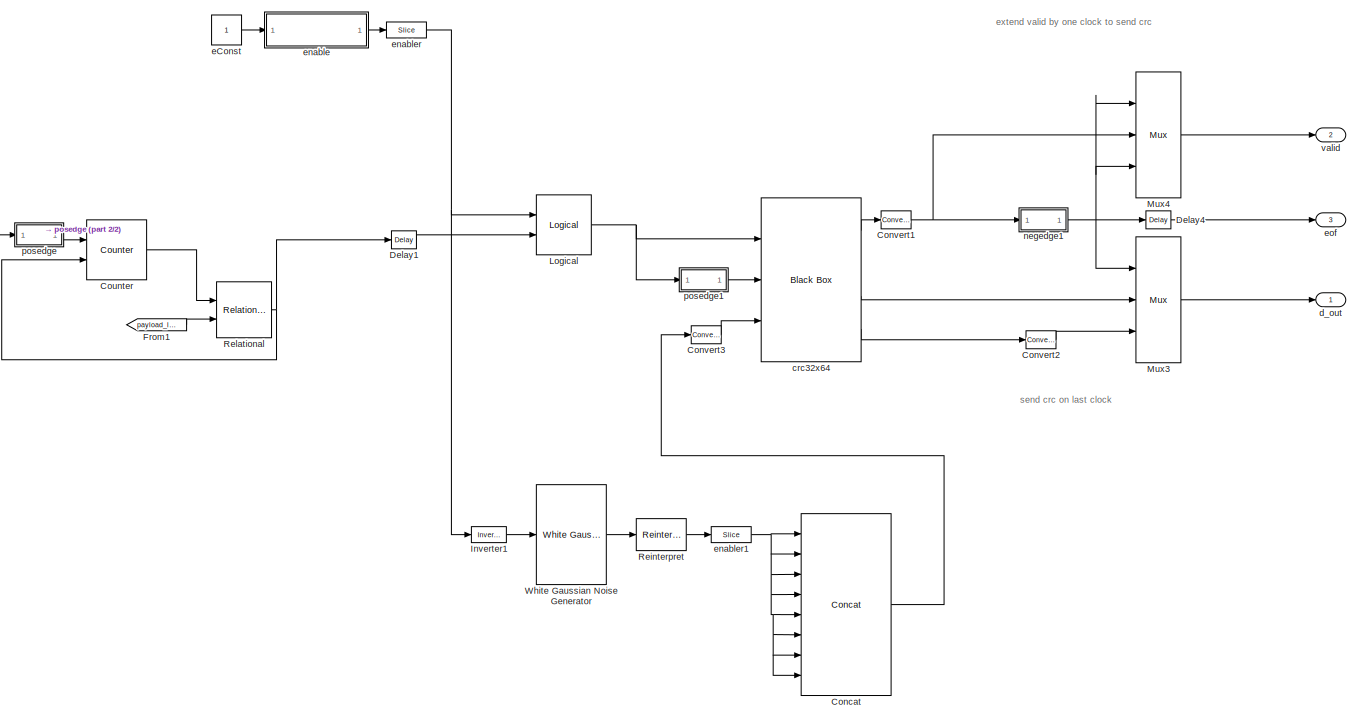
[diagram: pkt_sim0 - part 1/2, most of the canvas]
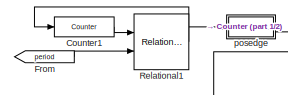
[diagram: pkt_sim0 - part 2/2, middle left region]
BLOCK [SubSystem] pkt_sim0
  Ports = [0, 3]
  RequestExecContextInheritance = off
  Variant = off
BLOCK [Reference] pkt_sim0/Concat  REF=xbsIndex_r4/Concat
  Ports = [8, 1]
  SourceBlock = xbsIndex_r4/Concat
  SourceType = Xilinx Bus Concatenator Block
BLOCK [Reference] pkt_sim0/Convert1  REF=xbsIndex_r4/Convert
  Ports = [1, 1]
  SourceBlock = xbsIndex_r4/Convert
  SourceType = Xilinx Type Converter Block
BLOCK [Reference] pkt_sim0/Convert2  REF=xbsIndex_r4/Convert
  Ports = [1, 1]
  SourceBlock = xbsIndex_r4/Convert
  SourceType = Xilinx Type Converter Block
BLOCK [Reference] pkt_sim0/Convert3  REF=xbsIndex_r4/Convert
  Ports = [1, 1]
  SourceBlock = xbsIndex_r4/Convert
  SourceType = Xilinx Type Converter Block
BLOCK [Reference] pkt_sim0/Counter  REF=xbsIndex_r4/Counter
  Ports = [2, 1]
  SourceBlock = xbsIndex_r4/Counter
  SourceType = Xilinx Counter Block
BLOCK [Reference] pkt_sim0/Counter1  REF=xbsIndex_r4/Counter
  Ports = [1, 1]
  SourceBlock = xbsIndex_r4/Counter
  SourceType = Xilinx Counter Block
BLOCK [Reference] pkt_sim0/Delay1  REF=xbsIndex_r4/Delay
  Ports = [1, 1]
  SourceBlock = xbsIndex_r4/Delay
  SourceType = Xilinx Delay Block
BLOCK [Reference] pkt_sim0/Delay4  REF=xbsIndex_r4/Delay
  Ports = [1, 1]
  SourceBlock = xbsIndex_r4/Delay
  SourceType = Xilinx Delay Block
BLOCK [From] pkt_sim0/From
  GotoTag = period
  TagVisibility = global
BLOCK [From] pkt_sim0/From1
  GotoTag = payload_len
  TagVisibility = global
BLOCK [Reference] pkt_sim0/Inverter1  REF=xbsIndex_r4/Inverter
  Ports = [1, 1]
  SourceBlock = xbsIndex_r4/Inverter
  SourceType = Xilinx Inverter Block
BLOCK [Reference] pkt_sim0/Logical  REF=xbsIndex_r4/Logical
  Ports = [2, 1]
  SourceBlock = xbsIndex_r4/Logical
  SourceType = Xilinx Logical Block Block
BLOCK [Reference] pkt_sim0/Mux3  REF=xbsIndex_r4/Mux
  Ports = [3, 1]
  SourceBlock = xbsIndex_r4/Mux
  SourceType = Xilinx Bus Multiplexer Block
BLOCK [Reference] pkt_sim0/Mux4  REF=xbsIndex_r4/Mux
  Ports = [3, 1]
  SourceBlock = xbsIndex_r4/Mux
  SourceType = Xilinx Bus Multiplexer Block
BLOCK [Reference] pkt_sim0/Reinterpret  REF=xbsIndex_r4/Reinterpret
  Ports = [1, 1]
  SourceBlock = xbsIndex_r4/Reinterpret
  SourceType = Xilinx Type Reinterpreter Block
BLOCK [Reference] pkt_sim0/Relational  REF=xbsIndex_r4/Relational
  Ports = [2, 1]
  SourceBlock = xbsIndex_r4/Relational
  SourceType = Xilinx Arithmetic Relational Operator Block
BLOCK [Reference] pkt_sim0/Relational1  REF=xbsIndex_r4/Relational
  Ports = [2, 1]
  SourceBlock = xbsIndex_r4/Relational
  SourceType = Xilinx Arithmetic Relational Operator Block
BLOCK [Reference] pkt_sim0/White Gaussian  Noise Generator  REF=xrbsComm_r4/White Gaussian 
Noise Generator
  Ports = [1, 1]
  SourceBlock = xrbsComm_r4/White Gaussian \nNoise Generator
  SourceType = White Gaussian Noise Generator
BLOCK [Reference] pkt_sim0/crc32x64  REF=xbsIndex_r4/Black Box
  Ports = [3, 4]
  SourceBlock = xbsIndex_r4/Black Box
  SourceType = Xilinx Black Box Block
BLOCK [Outport] pkt_sim0/d_out
  IconDisplay = Port number
BLOCK [Constant] pkt_sim0/eConst
BLOCK [SubSystem] pkt_sim0/enable
  AncestorBlock = xps_library/software register
  AttributesFormatString = 1input
  Ports = [1, 1]
  RequestExecContextInheritance = off
  Tag = xps:sw_reg
  Variant = off
BLOCK [Outport] pkt_sim0/enable/in_reg
  IconDisplay = Port number
BLOCK [Reference] pkt_sim0/enable/io_delay  REF=xbsIndex_r4/Delay
  Ports = [1, 1]
  SourceBlock = xbsIndex_r4/Delay
  SourceType = Xilinx Delay Block
BLOCK [Reference] pkt_sim0/enable/reint1  REF=xbsIndex_r4/Reinterpret
  Ports = [1, 1]
  SourceBlock = xbsIndex_r4/Reinterpret
  SourceType = Xilinx Type Reinterpreter Block
BLOCK [Inport] pkt_sim0/enable/sim_1
  IconDisplay = Port number
BLOCK [Reference] pkt_sim0/enable/slice_reg  REF=xbsIndex_r4/Slice
  Ports = [1, 1]
  SourceBlock = xbsIndex_r4/Slice
  SourceType = Xilinx Bit Slice Extractor Block
BLOCK [Reference] pkt_sim0/enable/test_snap_pkt_sim0_enable_user_data_out  REF=xbsIndex_r4/Gateway In
  Ports = [1, 1]
  SourceBlock = xbsIndex_r4/Gateway In
  SourceType = Xilinx Gateway In Block
BLOCK [Reference] pkt_sim0/enabler  REF=xbsIndex_r4/Slice
  Ports = [1, 1]
  SourceBlock = xbsIndex_r4/Slice
  SourceType = Xilinx Bit Slice Extractor Block
BLOCK [Reference] pkt_sim0/enabler1  REF=xbsIndex_r4/Slice
  Ports = [1, 1]
  SourceBlock = xbsIndex_r4/Slice
  SourceType = Xilinx Bit Slice Extractor Block
BLOCK [Outport] pkt_sim0/eof
  IconDisplay = Port number
  Port = 3
BLOCK [SubSystem] pkt_sim0/negedge1
  AncestorBlock = casper_library_misc/edge_detect
  AttributesFormatString = falling edges\nactive high
  Ports = [1, 1]
  RequestExecContextInheritance = off
  UserDataPersistent = on
  Variant = off
BLOCK [Reference] pkt_sim0/negedge1/Delay  REF=xbsIndex_r4/Delay
  Ports = [1, 1]
  SourceBlock = xbsIndex_r4/Delay
  SourceType = Xilinx Delay Block
BLOCK [Reference] pkt_sim0/negedge1/Inverter  REF=xbsIndex_r4/Inverter
  Ports = [1, 1]
  SourceBlock = xbsIndex_r4/Inverter
  SourceType = Xilinx Inverter Block
BLOCK [Reference] pkt_sim0/negedge1/edge_op  REF=xbsIndex_r4/Logical
  Ports = [2, 1]
  SourceBlock = xbsIndex_r4/Logical
  SourceType = Xilinx Logical Block Block
BLOCK [Inport] pkt_sim0/negedge1/in
  IconDisplay = Port number
BLOCK [Outport] pkt_sim0/negedge1/out
  IconDisplay = Port number
BLOCK [SubSystem] pkt_sim0/posedge
  AncestorBlock = casper_library_misc/edge_detect
  AttributesFormatString = rising edges\nactive high
  Ports = [1, 1]
  RequestExecContextInheritance = off
  UserDataPersistent = on
  Variant = off
BLOCK [Reference] pkt_sim0/posedge/Delay  REF=xbsIndex_r4/Delay
  Ports = [1, 1]
  SourceBlock = xbsIndex_r4/Delay
  SourceType = Xilinx Delay Block
BLOCK [Reference] pkt_sim0/posedge/Inverter  REF=xbsIndex_r4/Inverter
  Ports = [1, 1]
  SourceBlock = xbsIndex_r4/Inverter
  SourceType = Xilinx Inverter Block
BLOCK [Reference] pkt_sim0/posedge/edge_op  REF=xbsIndex_r4/Logical
  Ports = [2, 1]
  SourceBlock = xbsIndex_r4/Logical
  SourceType = Xilinx Logical Block Block
BLOCK [Inport] pkt_sim0/posedge/in
  IconDisplay = Port number
BLOCK [Outport] pkt_sim0/posedge/out
  IconDisplay = Port number
BLOCK [SubSystem] pkt_sim0/posedge1
  AncestorBlock = casper_library_misc/edge_detect
  AttributesFormatString = rising edges\nactive high
  Ports = [1, 1]
  RequestExecContextInheritance = off
  UserDataPersistent = on
  Variant = off
BLOCK [Reference] pkt_sim0/posedge1/Delay  REF=xbsIndex_r4/Delay
  Ports = [1, 1]
  SourceBlock = xbsIndex_r4/Delay
  SourceType = Xilinx Delay Block
BLOCK [Reference] pkt_sim0/posedge1/Inverter  REF=xbsIndex_r4/Inverter
  Ports = [1, 1]
  SourceBlock = xbsIndex_r4/Inverter
  SourceType = Xilinx Inverter Block
BLOCK [Reference] pkt_sim0/posedge1/edge_op  REF=xbsIndex_r4/Logical
  Ports = [2, 1]
  SourceBlock = xbsIndex_r4/Logical
  SourceType = Xilinx Logical Block Block
BLOCK [Inport] pkt_sim0/posedge1/in
  IconDisplay = Port number
BLOCK [Outport] pkt_sim0/posedge1/out
  IconDisplay = Port number
BLOCK [Outport] pkt_sim0/valid
  IconDisplay = Port number
  Port = 2
BLOCK [SubSystem] pkt_sim1
  Ports = [0, 3]
  RequestExecContextInheritance = off
  Variant = off
BLOCK [Reference] pkt_sim1/Concat  REF=xbsIndex_r4/Concat
  Ports = [8, 1]
  SourceBlock = xbsIndex_r4/Concat
  SourceType = Xilinx Bus Concatenator Block
BLOCK [Reference] pkt_sim1/Convert1  REF=xbsIndex_r4/Convert
  Ports = [1, 1]
  SourceBlock = xbsIndex_r4/Convert
  SourceType = Xilinx Type Converter Block
BLOCK [Reference] pkt_sim1/Convert2  REF=xbsIndex_r4/Convert
  Ports = [1, 1]
  SourceBlock = xbsIndex_r4/Convert
  SourceType = Xilinx Type Converter Block
BLOCK [Reference] pkt_sim1/Convert3  REF=xbsIndex_r4/Convert
  Ports = [1, 1]
  SourceBlock = xbsIndex_r4/Convert
  SourceType = Xilinx Type Converter Block
BLOCK [Reference] pkt_sim1/Counter  REF=xbsIndex_r4/Counter
  Ports = [2, 1]
  SourceBlock = xbsIndex_r4/Counter
  SourceType = Xilinx Counter Block
BLOCK [Reference] pkt_sim1/Counter1  REF=xbsIndex_r4/Counter
  Ports = [1, 1]
  SourceBlock = xbsIndex_r4/Counter
  SourceType = Xilinx Counter Block
BLOCK [Reference] pkt_sim1/Delay1  REF=xbsIndex_r4/Delay
  Ports = [1, 1]
  SourceBlock = xbsIndex_r4/Delay
  SourceType = Xilinx Delay Block
BLOCK [Reference] pkt_sim1/Delay4  REF=xbsIndex_r4/Delay
  Ports = [1, 1]
  SourceBlock = xbsIndex_r4/Delay
  SourceType = Xilinx Delay Block
BLOCK [From] pkt_sim1/From
  GotoTag = period
  TagVisibility = global
BLOCK [From] pkt_sim1/From1
  GotoTag = payload_len
  TagVisibility = global
BLOCK [Reference] pkt_sim1/Inverter1  REF=xbsIndex_r4/Inverter
  Ports = [1, 1]
  SourceBlock = xbsIndex_r4/Inverter
  SourceType = Xilinx Inverter Block
BLOCK [Reference] pkt_sim1/Logical  REF=xbsIndex_r4/Logical
  Ports = [2, 1]
  SourceBlock = xbsIndex_r4/Logical
  SourceType = Xilinx Logical Block Block
BLOCK [Reference] pkt_sim1/Mux3  REF=xbsIndex_r4/Mux
  Ports = [3, 1]
  SourceBlock = xbsIndex_r4/Mux
  SourceType = Xilinx Bus Multiplexer Block
BLOCK [Reference] pkt_sim1/Mux4  REF=xbsIndex_r4/Mux
  Ports = [3, 1]
  SourceBlock = xbsIndex_r4/Mux
  SourceType = Xilinx Bus Multiplexer Block
BLOCK [Reference] pkt_sim1/Reinterpret  REF=xbsIndex_r4/Reinterpret
  Ports = [1, 1]
  SourceBlock = xbsIndex_r4/Reinterpret
  SourceType = Xilinx Type Reinterpreter Block
BLOCK [Reference] pkt_sim1/Relational  REF=xbsIndex_r4/Relational
  Ports = [2, 1]
  SourceBlock = xbsIndex_r4/Relational
  SourceType = Xilinx Arithmetic Relational Operator Block
BLOCK [Reference] pkt_sim1/Relational1  REF=xbsIndex_r4/Relational
  Ports = [2, 1]
  SourceBlock = xbsIndex_r4/Relational
  SourceType = Xilinx Arithmetic Relational Operator Block
BLOCK [Reference] pkt_sim1/White Gaussian  Noise Generator  REF=xrbsComm_r4/White Gaussian 
Noise Generator
  Ports = [1, 1]
  SourceBlock = xrbsComm_r4/White Gaussian \nNoise Generator
  SourceType = White Gaussian Noise Generator
BLOCK [Reference] pkt_sim1/crc32x64  REF=xbsIndex_r4/Black Box
  Ports = [3, 4]
  SourceBlock = xbsIndex_r4/Black Box
  SourceType = Xilinx Black Box Block
BLOCK [Outport] pkt_sim1/d_out
  IconDisplay = Port number
BLOCK [Constant] pkt_sim1/eConst
BLOCK [SubSystem] pkt_sim1/enable
  AncestorBlock = xps_library/software register
  AttributesFormatString = 1input
  Ports = [1, 1]
  RequestExecContextInheritance = off
  Tag = xps:sw_reg
  Variant = off
BLOCK [Outport] pkt_sim1/enable/in_reg
  IconDisplay = Port number
BLOCK [Reference] pkt_sim1/enable/io_delay  REF=xbsIndex_r4/Delay
  Ports = [1, 1]
  SourceBlock = xbsIndex_r4/Delay
  SourceType = Xilinx Delay Block
BLOCK [Reference] pkt_sim1/enable/reint1  REF=xbsIndex_r4/Reinterpret
  Ports = [1, 1]
  SourceBlock = xbsIndex_r4/Reinterpret
  SourceType = Xilinx Type Reinterpreter Block
BLOCK [Inport] pkt_sim1/enable/sim_1
  IconDisplay = Port number
BLOCK [Reference] pkt_sim1/enable/slice_reg  REF=xbsIndex_r4/Slice
  Ports = [1, 1]
  SourceBlock = xbsIndex_r4/Slice
  SourceType = Xilinx Bit Slice Extractor Block
BLOCK [Reference] pkt_sim1/enable/test_snap_pkt_sim1_enable_user_data_out  REF=xbsIndex_r4/Gateway In
  Ports = [1, 1]
  SourceBlock = xbsIndex_r4/Gateway In
  SourceType = Xilinx Gateway In Block
BLOCK [Reference] pkt_sim1/enabler  REF=xbsIndex_r4/Slice
  Ports = [1, 1]
  SourceBlock = xbsIndex_r4/Slice
  SourceType = Xilinx Bit Slice Extractor Block
BLOCK [Reference] pkt_sim1/enabler1  REF=xbsIndex_r4/Slice
  Ports = [1, 1]
  SourceBlock = xbsIndex_r4/Slice
  SourceType = Xilinx Bit Slice Extractor Block
BLOCK [Outport] pkt_sim1/eof
  IconDisplay = Port number
  Port = 3
BLOCK [SubSystem] pkt_sim1/negedge1
  AncestorBlock = casper_library_misc/edge_detect
  AttributesFormatString = falling edges\nactive high
  Ports = [1, 1]
  RequestExecContextInheritance = off
  UserDataPersistent = on
  Variant = off
BLOCK [Reference] pkt_sim1/negedge1/Delay  REF=xbsIndex_r4/Delay
  Ports = [1, 1]
  SourceBlock = xbsIndex_r4/Delay
  SourceType = Xilinx Delay Block
BLOCK [Reference] pkt_sim1/negedge1/Inverter  REF=xbsIndex_r4/Inverter
  Ports = [1, 1]
  SourceBlock = xbsIndex_r4/Inverter
  SourceType = Xilinx Inverter Block
BLOCK [Reference] pkt_sim1/negedge1/edge_op  REF=xbsIndex_r4/Logical
  Ports = [2, 1]
  SourceBlock = xbsIndex_r4/Logical
  SourceType = Xilinx Logical Block Block
BLOCK [Inport] pkt_sim1/negedge1/in
  IconDisplay = Port number
BLOCK [Outport] pkt_sim1/negedge1/out
  IconDisplay = Port number
BLOCK [SubSystem] pkt_sim1/posedge
  AncestorBlock = casper_library_misc/edge_detect
  AttributesFormatString = rising edges\nactive high
  Ports = [1, 1]
  RequestExecContextInheritance = off
  UserDataPersistent = on
  Variant = off
BLOCK [Reference] pkt_sim1/posedge/Delay  REF=xbsIndex_r4/Delay
  Ports = [1, 1]
  SourceBlock = xbsIndex_r4/Delay
  SourceType = Xilinx Delay Block
BLOCK [Reference] pkt_sim1/posedge/Inverter  REF=xbsIndex_r4/Inverter
  Ports = [1, 1]
  SourceBlock = xbsIndex_r4/Inverter
  SourceType = Xilinx Inverter Block
BLOCK [Reference] pkt_sim1/posedge/edge_op  REF=xbsIndex_r4/Logical
  Ports = [2, 1]
  SourceBlock = xbsIndex_r4/Logical
  SourceType = Xilinx Logical Block Block
BLOCK [Inport] pkt_sim1/posedge/in
  IconDisplay = Port number
BLOCK [Outport] pkt_sim1/posedge/out
  IconDisplay = Port number
BLOCK [SubSystem] pkt_sim1/posedge1
  AncestorBlock = casper_library_misc/edge_detect
  AttributesFormatString = rising edges\nactive high
  Ports = [1, 1]
  RequestExecContextInheritance = off
  UserDataPersistent = on
  Variant = off
BLOCK [Reference] pkt_sim1/posedge1/Delay  REF=xbsIndex_r4/Delay
  Ports = [1, 1]
  SourceBlock = xbsIndex_r4/Delay
  SourceType = Xilinx Delay Block
BLOCK [Reference] pkt_sim1/posedge1/Inverter  REF=xbsIndex_r4/Inverter
  Ports = [1, 1]
  SourceBlock = xbsIndex_r4/Inverter
  SourceType = Xilinx Inverter Block
BLOCK [Reference] pkt_sim1/posedge1/edge_op  REF=xbsIndex_r4/Logical
  Ports = [2, 1]
  SourceBlock = xbsIndex_r4/Logical
  SourceType = Xilinx Logical Block Block
BLOCK [Inport] pkt_sim1/posedge1/in
  IconDisplay = Port number
BLOCK [Outport] pkt_sim1/posedge1/out
  IconDisplay = Port number
BLOCK [Outport] pkt_sim1/valid
  IconDisplay = Port number
  Port = 2
BLOCK [Reference] pps_in  REF=xps_library/gpio  (lib defined in mdl_00b5cec29cd0, mdl_02ab6ecaa3d1, +5 more)
  Ports = [1, 1]
  SourceBlock = xps_library/gpio
  SourceType = gpio
  Tag = xps:gpio
BLOCK [Reference] pps_out  REF=xps_library/gpio  (lib defined in mdl_00b5cec29cd0, mdl_02ab6ecaa3d1, +5 more)
  Ports = [1, 1]
  SourceBlock = xps_library/gpio
  SourceType = gpio
  Tag = xps:gpio
BLOCK [Constant] reset
  Value = 0
BLOCK [Constant] reset1
  Value = 0
BLOCK [Constant] reset2
  Value = 0
BLOCK [Constant] reset3
  Value = 0
BLOCK [SubSystem] rst
  AncestorBlock = xps_library/software register
  AttributesFormatString = 1input
  Ports = [1, 1]
  RequestExecContextInheritance = off
  Tag = xps:sw_reg
  Variant = off
BLOCK [Outport] rst/in_reg
  IconDisplay = Port number
BLOCK [Reference] rst/io_delay  REF=xbsIndex_r4/Delay
  Ports = [1, 1]
  SourceBlock = xbsIndex_r4/Delay
  SourceType = Xilinx Delay Block
BLOCK [Reference] rst/reint1  REF=xbsIndex_r4/Reinterpret
  Ports = [1, 1]
  SourceBlock = xbsIndex_r4/Reinterpret
  SourceType = Xilinx Type Reinterpreter Block
BLOCK [Inport] rst/sim_1
  IconDisplay = Port number
BLOCK [Reference] rst/slice_reg  REF=xbsIndex_r4/Slice
  Ports = [1, 1]
  SourceBlock = xbsIndex_r4/Slice
  SourceType = Xilinx Bit Slice Extractor Block
BLOCK [Reference] rst/test_snap_rst_user_data_out  REF=xbsIndex_r4/Gateway In
  Ports = [1, 1]
  SourceBlock = xbsIndex_r4/Gateway In
  SourceType = Xilinx Gateway In Block
BLOCK [SubSystem] rx_frame_cnt0
  AncestorBlock = xps_library/software register
  AttributesFormatString = 1output
  Ports = [1, 1]
  RequestExecContextInheritance = off
  Tag = xps:sw_reg
  Variant = off
BLOCK [Reference] rx_frame_cnt0/assert_reg  REF=xbsIndex_r4/Assert
  Ports = [1, 1]
  SourceBlock = xbsIndex_r4/Assert
  SourceType = Xilinx Assert Block
BLOCK [Reference] rx_frame_cnt0/cast_gw  REF=xbsIndex_r4/Convert
  Ports = [1, 1]
  SourceBlock = xbsIndex_r4/Convert
  SourceType = Xilinx Type Converter Block
BLOCK [Reference] rx_frame_cnt0/io_delay  REF=xbsIndex_r4/Delay
  Ports = [1, 1]
  SourceBlock = xbsIndex_r4/Delay
  SourceType = Xilinx Delay Block
BLOCK [Inport] rx_frame_cnt0/out_reg
  IconDisplay = Port number
BLOCK [Reference] rx_frame_cnt0/reint1  REF=xbsIndex_r4/Reinterpret
  Ports = [1, 1]
  SourceBlock = xbsIndex_r4/Reinterpret
  SourceType = Xilinx Type Reinterpreter Block
BLOCK [Outport] rx_frame_cnt0/sim_out
  IconDisplay = Port number
BLOCK [Reference] rx_frame_cnt0/test_snap_rx_frame_cnt0_user_data_in  REF=xbsIndex_r4/Gateway Out
  Ports = [1, 1]
  SourceBlock = xbsIndex_r4/Gateway Out
  SourceType = Xilinx Gateway Out Block
BLOCK [SubSystem] rx_frame_cnt1
  AncestorBlock = xps_library/software register
  AttributesFormatString = 1output
  Ports = [1, 1]
  RequestExecContextInheritance = off
  Tag = xps:sw_reg
  Variant = off
BLOCK [Reference] rx_frame_cnt1/assert_reg  REF=xbsIndex_r4/Assert
  Ports = [1, 1]
  SourceBlock = xbsIndex_r4/Assert
  SourceType = Xilinx Assert Block
BLOCK [Reference] rx_frame_cnt1/cast_gw  REF=xbsIndex_r4/Convert
  Ports = [1, 1]
  SourceBlock = xbsIndex_r4/Convert
  SourceType = Xilinx Type Converter Block
BLOCK [Reference] rx_frame_cnt1/io_delay  REF=xbsIndex_r4/Delay
  Ports = [1, 1]
  SourceBlock = xbsIndex_r4/Delay
  SourceType = Xilinx Delay Block
BLOCK [Inport] rx_frame_cnt1/out_reg
  IconDisplay = Port number
BLOCK [Reference] rx_frame_cnt1/reint1  REF=xbsIndex_r4/Reinterpret
  Ports = [1, 1]
  SourceBlock = xbsIndex_r4/Reinterpret
  SourceType = Xilinx Type Reinterpreter Block
BLOCK [Outport] rx_frame_cnt1/sim_out
  IconDisplay = Port number
BLOCK [Reference] rx_frame_cnt1/test_snap_rx_frame_cnt1_user_data_in  REF=xbsIndex_r4/Gateway Out
  Ports = [1, 1]
  SourceBlock = xbsIndex_r4/Gateway Out
  SourceType = Xilinx Gateway Out Block
BLOCK [SubSystem] rx_frame_err0
  AncestorBlock = xps_library/software register
  AttributesFormatString = 1output
  Ports = [1, 1]
  RequestExecContextInheritance = off
  Tag = xps:sw_reg
  Variant = off
BLOCK [Reference] rx_frame_err0/assert_reg  REF=xbsIndex_r4/Assert
  Ports = [1, 1]
  SourceBlock = xbsIndex_r4/Assert
  SourceType = Xilinx Assert Block
BLOCK [Reference] rx_frame_err0/cast_gw  REF=xbsIndex_r4/Convert
  Ports = [1, 1]
  SourceBlock = xbsIndex_r4/Convert
  SourceType = Xilinx Type Converter Block
BLOCK [Reference] rx_frame_err0/io_delay  REF=xbsIndex_r4/Delay
  Ports = [1, 1]
  SourceBlock = xbsIndex_r4/Delay
  SourceType = Xilinx Delay Block
BLOCK [Inport] rx_frame_err0/out_reg
  IconDisplay = Port number
BLOCK [Reference] rx_frame_err0/reint1  REF=xbsIndex_r4/Reinterpret
  Ports = [1, 1]
  SourceBlock = xbsIndex_r4/Reinterpret
  SourceType = Xilinx Type Reinterpreter Block
BLOCK [Outport] rx_frame_err0/sim_out
  IconDisplay = Port number
BLOCK [Reference] rx_frame_err0/test_snap_rx_frame_err0_user_data_in  REF=xbsIndex_r4/Gateway Out
  Ports = [1, 1]
  SourceBlock = xbsIndex_r4/Gateway Out
  SourceType = Xilinx Gateway Out Block
BLOCK [SubSystem] rx_frame_err1
  AncestorBlock = xps_library/software register
  AttributesFormatString = 1output
  Ports = [1, 1]
  RequestExecContextInheritance = off
  Tag = xps:sw_reg
  Variant = off
BLOCK [Reference] rx_frame_err1/assert_reg  REF=xbsIndex_r4/Assert
  Ports = [1, 1]
  SourceBlock = xbsIndex_r4/Assert
  SourceType = Xilinx Assert Block
BLOCK [Reference] rx_frame_err1/cast_gw  REF=xbsIndex_r4/Convert
  Ports = [1, 1]
  SourceBlock = xbsIndex_r4/Convert
  SourceType = Xilinx Type Converter Block
BLOCK [Reference] rx_frame_err1/io_delay  REF=xbsIndex_r4/Delay
  Ports = [1, 1]
  SourceBlock = xbsIndex_r4/Delay
  SourceType = Xilinx Delay Block
BLOCK [Inport] rx_frame_err1/out_reg
  IconDisplay = Port number
BLOCK [Reference] rx_frame_err1/reint1  REF=xbsIndex_r4/Reinterpret
  Ports = [1, 1]
  SourceBlock = xbsIndex_r4/Reinterpret
  SourceType = Xilinx Type Reinterpreter Block
BLOCK [Outport] rx_frame_err1/sim_out
  IconDisplay = Port number
BLOCK [Reference] rx_frame_err1/test_snap_rx_frame_err1_user_data_in  REF=xbsIndex_r4/Gateway Out
  Ports = [1, 1]
  SourceBlock = xbsIndex_r4/Gateway Out
  SourceType = Xilinx Gateway Out Block
BLOCK [SubSystem] rx_of0
  AncestorBlock = xps_library/software register
  AttributesFormatString = 1output
  Ports = [1, 1]
  RequestExecContextInheritance = off
  Tag = xps:sw_reg
  Variant = off
BLOCK [Reference] rx_of0/assert_reg  REF=xbsIndex_r4/Assert
  Ports = [1, 1]
  SourceBlock = xbsIndex_r4/Assert
  SourceType = Xilinx Assert Block
BLOCK [Reference] rx_of0/cast_gw  REF=xbsIndex_r4/Convert
  Ports = [1, 1]
  SourceBlock = xbsIndex_r4/Convert
  SourceType = Xilinx Type Converter Block
BLOCK [Reference] rx_of0/io_delay  REF=xbsIndex_r4/Delay
  Ports = [1, 1]
  SourceBlock = xbsIndex_r4/Delay
  SourceType = Xilinx Delay Block
BLOCK [Inport] rx_of0/out_reg
  IconDisplay = Port number
BLOCK [Reference] rx_of0/reint1  REF=xbsIndex_r4/Reinterpret
  Ports = [1, 1]
  SourceBlock = xbsIndex_r4/Reinterpret
  SourceType = Xilinx Type Reinterpreter Block
BLOCK [Outport] rx_of0/sim_out
  IconDisplay = Port number
BLOCK [Reference] rx_of0/test_snap_rx_of0_user_data_in  REF=xbsIndex_r4/Gateway Out
  Ports = [1, 1]
  SourceBlock = xbsIndex_r4/Gateway Out
  SourceType = Xilinx Gateway Out Block
BLOCK [SubSystem] rx_of1
  AncestorBlock = xps_library/software register
  AttributesFormatString = 1output
  Ports = [1, 1]
  RequestExecContextInheritance = off
  Tag = xps:sw_reg
  Variant = off
BLOCK [Reference] rx_of1/assert_reg  REF=xbsIndex_r4/Assert
  Ports = [1, 1]
  SourceBlock = xbsIndex_r4/Assert
  SourceType = Xilinx Assert Block
BLOCK [Reference] rx_of1/cast_gw  REF=xbsIndex_r4/Convert
  Ports = [1, 1]
  SourceBlock = xbsIndex_r4/Convert
  SourceType = Xilinx Type Converter Block
BLOCK [Reference] rx_of1/io_delay  REF=xbsIndex_r4/Delay
  Ports = [1, 1]
  SourceBlock = xbsIndex_r4/Delay
  SourceType = Xilinx Delay Block
BLOCK [Inport] rx_of1/out_reg
  IconDisplay = Port number
BLOCK [Reference] rx_of1/reint1  REF=xbsIndex_r4/Reinterpret
  Ports = [1, 1]
  SourceBlock = xbsIndex_r4/Reinterpret
  SourceType = Xilinx Type Reinterpreter Block
BLOCK [Outport] rx_of1/sim_out
  IconDisplay = Port number
BLOCK [Reference] rx_of1/test_snap_rx_of1_user_data_in  REF=xbsIndex_r4/Gateway Out
  Ports = [1, 1]
  SourceBlock = xbsIndex_r4/Gateway Out
  SourceType = Xilinx Gateway Out Block
BLOCK [Constant] sim_freq
  Value = 200
BLOCK [Constant] sim_length
  Value = 50
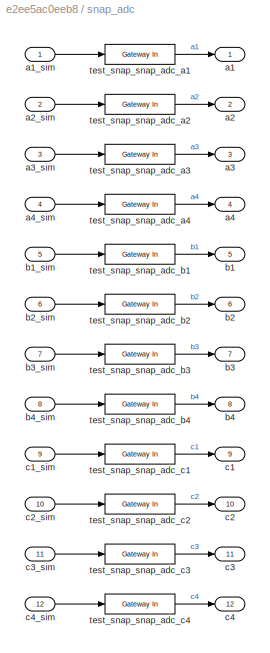
BLOCK [SubSystem] snap_adc
  AncestorBlock = xps_library/ADCs/snap_adc
  Ports = [12, 12]
  RequestExecContextInheritance = off
  Tag = xps:snap_adc
  UserDataPersistent = on
  Variant = off
BLOCK [Outport] snap_adc/a1
  IconDisplay = Port number
BLOCK [Inport] snap_adc/a1_sim
  IconDisplay = Port number
BLOCK [Outport] snap_adc/a2
  IconDisplay = Port number
  Port = 2
BLOCK [Inport] snap_adc/a2_sim
  IconDisplay = Port number
  Port = 2
BLOCK [Outport] snap_adc/a3
  IconDisplay = Port number
  Port = 3
BLOCK [Inport] snap_adc/a3_sim
  IconDisplay = Port number
  Port = 3
BLOCK [Outport] snap_adc/a4
  IconDisplay = Port number
  Port = 4
BLOCK [Inport] snap_adc/a4_sim
  IconDisplay = Port number
  Port = 4
BLOCK [Outport] snap_adc/b1
  IconDisplay = Port number
  Port = 5
BLOCK [Inport] snap_adc/b1_sim
  IconDisplay = Port number
  Port = 5
BLOCK [Outport] snap_adc/b2
  IconDisplay = Port number
  Port = 6
BLOCK [Inport] snap_adc/b2_sim
  IconDisplay = Port number
  Port = 6
BLOCK [Outport] snap_adc/b3
  IconDisplay = Port number
  Port = 7
BLOCK [Inport] snap_adc/b3_sim
  IconDisplay = Port number
  Port = 7
BLOCK [Outport] snap_adc/b4
  IconDisplay = Port number
  Port = 8
BLOCK [Inport] snap_adc/b4_sim
  IconDisplay = Port number
  Port = 8
BLOCK [Outport] snap_adc/c1
  IconDisplay = Port number
  Port = 9
BLOCK [Inport] snap_adc/c1_sim
  IconDisplay = Port number
  Port = 9
BLOCK [Outport] snap_adc/c2
  IconDisplay = Port number
  Port = 10
BLOCK [Inport] snap_adc/c2_sim
  IconDisplay = Port number
  Port = 10
BLOCK [Outport] snap_adc/c3
  IconDisplay = Port number
  Port = 11
BLOCK [Inport] snap_adc/c3_sim
  IconDisplay = Port number
  Port = 11
BLOCK [Outport] snap_adc/c4
  IconDisplay = Port number
  Port = 12
BLOCK [Inport] snap_adc/c4_sim
  IconDisplay = Port number
  Port = 12
BLOCK [Reference] snap_adc/test_snap_snap_adc_a1  REF=xbsIndex_r4/Gateway In
  Ports = [1, 1]
  SourceBlock = xbsIndex_r4/Gateway In
  SourceType = Xilinx Gateway In Block
BLOCK [Reference] snap_adc/test_snap_snap_adc_a2  REF=xbsIndex_r4/Gateway In
  Ports = [1, 1]
  SourceBlock = xbsIndex_r4/Gateway In
  SourceType = Xilinx Gateway In Block
BLOCK [Reference] snap_adc/test_snap_snap_adc_a3  REF=xbsIndex_r4/Gateway In
  Ports = [1, 1]
  SourceBlock = xbsIndex_r4/Gateway In
  SourceType = Xilinx Gateway In Block
BLOCK [Reference] snap_adc/test_snap_snap_adc_a4  REF=xbsIndex_r4/Gateway In
  Ports = [1, 1]
  SourceBlock = xbsIndex_r4/Gateway In
  SourceType = Xilinx Gateway In Block
BLOCK [Reference] snap_adc/test_snap_snap_adc_b1  REF=xbsIndex_r4/Gateway In
  Ports = [1, 1]
  SourceBlock = xbsIndex_r4/Gateway In
  SourceType = Xilinx Gateway In Block
BLOCK [Reference] snap_adc/test_snap_snap_adc_b2  REF=xbsIndex_r4/Gateway In
  Ports = [1, 1]
  SourceBlock = xbsIndex_r4/Gateway In
  SourceType = Xilinx Gateway In Block
BLOCK [Reference] snap_adc/test_snap_snap_adc_b3  REF=xbsIndex_r4/Gateway In
  Ports = [1, 1]
  SourceBlock = xbsIndex_r4/Gateway In
  SourceType = Xilinx Gateway In Block
BLOCK [Reference] snap_adc/test_snap_snap_adc_b4  REF=xbsIndex_r4/Gateway In
  Ports = [1, 1]
  SourceBlock = xbsIndex_r4/Gateway In
  SourceType = Xilinx Gateway In Block
BLOCK [Reference] snap_adc/test_snap_snap_adc_c1  REF=xbsIndex_r4/Gateway In
  Ports = [1, 1]
  SourceBlock = xbsIndex_r4/Gateway In
  SourceType = Xilinx Gateway In Block
BLOCK [Reference] snap_adc/test_snap_snap_adc_c2  REF=xbsIndex_r4/Gateway In
  Ports = [1, 1]
  SourceBlock = xbsIndex_r4/Gateway In
  SourceType = Xilinx Gateway In Block
BLOCK [Reference] snap_adc/test_snap_snap_adc_c3  REF=xbsIndex_r4/Gateway In
  Ports = [1, 1]
  SourceBlock = xbsIndex_r4/Gateway In
  SourceType = Xilinx Gateway In Block
BLOCK [Reference] snap_adc/test_snap_snap_adc_c4  REF=xbsIndex_r4/Gateway In
  Ports = [1, 1]
  SourceBlock = xbsIndex_r4/Gateway In
  SourceType = Xilinx Gateway In Block
BLOCK [SubSystem] tx_frame_cnt0
  AncestorBlock = xps_library/software register
  AttributesFormatString = 1output
  Ports = [1, 1]
  RequestExecContextInheritance = off
  Tag = xps:sw_reg
  Variant = off
BLOCK [Reference] tx_frame_cnt0/assert_reg  REF=xbsIndex_r4/Assert
  Ports = [1, 1]
  SourceBlock = xbsIndex_r4/Assert
  SourceType = Xilinx Assert Block
BLOCK [Reference] tx_frame_cnt0/cast_gw  REF=xbsIndex_r4/Convert
  Ports = [1, 1]
  SourceBlock = xbsIndex_r4/Convert
  SourceType = Xilinx Type Converter Block
BLOCK [Reference] tx_frame_cnt0/io_delay  REF=xbsIndex_r4/Delay
  Ports = [1, 1]
  SourceBlock = xbsIndex_r4/Delay
  SourceType = Xilinx Delay Block
BLOCK [Inport] tx_frame_cnt0/out_reg
  IconDisplay = Port number
BLOCK [Reference] tx_frame_cnt0/reint1  REF=xbsIndex_r4/Reinterpret
  Ports = [1, 1]
  SourceBlock = xbsIndex_r4/Reinterpret
  SourceType = Xilinx Type Reinterpreter Block
BLOCK [Outport] tx_frame_cnt0/sim_out
  IconDisplay = Port number
BLOCK [Reference] tx_frame_cnt0/test_snap_tx_frame_cnt0_user_data_in  REF=xbsIndex_r4/Gateway Out
  Ports = [1, 1]
  SourceBlock = xbsIndex_r4/Gateway Out
  SourceType = Xilinx Gateway Out Block
BLOCK [SubSystem] tx_frame_cnt1
  AncestorBlock = xps_library/software register
  AttributesFormatString = 1output
  Ports = [1, 1]
  RequestExecContextInheritance = off
  Tag = xps:sw_reg
  Variant = off
BLOCK [Reference] tx_frame_cnt1/assert_reg  REF=xbsIndex_r4/Assert
  Ports = [1, 1]
  SourceBlock = xbsIndex_r4/Assert
  SourceType = Xilinx Assert Block
BLOCK [Reference] tx_frame_cnt1/cast_gw  REF=xbsIndex_r4/Convert
  Ports = [1, 1]
  SourceBlock = xbsIndex_r4/Convert
  SourceType = Xilinx Type Converter Block
BLOCK [Reference] tx_frame_cnt1/io_delay  REF=xbsIndex_r4/Delay
  Ports = [1, 1]
  SourceBlock = xbsIndex_r4/Delay
  SourceType = Xilinx Delay Block
BLOCK [Inport] tx_frame_cnt1/out_reg
  IconDisplay = Port number
BLOCK [Reference] tx_frame_cnt1/reint1  REF=xbsIndex_r4/Reinterpret
  Ports = [1, 1]
  SourceBlock = xbsIndex_r4/Reinterpret
  SourceType = Xilinx Type Reinterpreter Block
BLOCK [Outport] tx_frame_cnt1/sim_out
  IconDisplay = Port number
BLOCK [Reference] tx_frame_cnt1/test_snap_tx_frame_cnt1_user_data_in  REF=xbsIndex_r4/Gateway Out
  Ports = [1, 1]
  SourceBlock = xbsIndex_r4/Gateway Out
  SourceType = Xilinx Gateway Out Block
BLOCK [SubSystem] tx_minus_rx0
  AncestorBlock = xps_library/software register
  AttributesFormatString = 1output
  Ports = [1, 1]
  RequestExecContextInheritance = off
  Tag = xps:sw_reg
  Variant = off
BLOCK [Reference] tx_minus_rx0/assert_reg  REF=xbsIndex_r4/Assert
  Ports = [1, 1]
  SourceBlock = xbsIndex_r4/Assert
  SourceType = Xilinx Assert Block
BLOCK [Reference] tx_minus_rx0/cast_gw  REF=xbsIndex_r4/Convert
  Ports = [1, 1]
  SourceBlock = xbsIndex_r4/Convert
  SourceType = Xilinx Type Converter Block
BLOCK [Reference] tx_minus_rx0/io_delay  REF=xbsIndex_r4/Delay
  Ports = [1, 1]
  SourceBlock = xbsIndex_r4/Delay
  SourceType = Xilinx Delay Block
BLOCK [Inport] tx_minus_rx0/out_reg
  IconDisplay = Port number
BLOCK [Reference] tx_minus_rx0/reint1  REF=xbsIndex_r4/Reinterpret
  Ports = [1, 1]
  SourceBlock = xbsIndex_r4/Reinterpret
  SourceType = Xilinx Type Reinterpreter Block
BLOCK [Outport] tx_minus_rx0/sim_out
  IconDisplay = Port number
BLOCK [Reference] tx_minus_rx0/test_snap_tx_minus_rx0_user_data_in  REF=xbsIndex_r4/Gateway Out
  Ports = [1, 1]
  SourceBlock = xbsIndex_r4/Gateway Out
  SourceType = Xilinx Gateway Out Block
BLOCK [SubSystem] tx_minus_rx1
  AncestorBlock = xps_library/software register
  AttributesFormatString = 1output
  Ports = [1, 1]
  RequestExecContextInheritance = off
  Tag = xps:sw_reg
  Variant = off
BLOCK [Reference] tx_minus_rx1/assert_reg  REF=xbsIndex_r4/Assert
  Ports = [1, 1]
  SourceBlock = xbsIndex_r4/Assert
  SourceType = Xilinx Assert Block
BLOCK [Reference] tx_minus_rx1/cast_gw  REF=xbsIndex_r4/Convert
  Ports = [1, 1]
  SourceBlock = xbsIndex_r4/Convert
  SourceType = Xilinx Type Converter Block
BLOCK [Reference] tx_minus_rx1/io_delay  REF=xbsIndex_r4/Delay
  Ports = [1, 1]
  SourceBlock = xbsIndex_r4/Delay
  SourceType = Xilinx Delay Block
BLOCK [Inport] tx_minus_rx1/out_reg
  IconDisplay = Port number
BLOCK [Reference] tx_minus_rx1/reint1  REF=xbsIndex_r4/Reinterpret
  Ports = [1, 1]
  SourceBlock = xbsIndex_r4/Reinterpret
  SourceType = Xilinx Type Reinterpreter Block
BLOCK [Outport] tx_minus_rx1/sim_out
  IconDisplay = Port number
BLOCK [Reference] tx_minus_rx1/test_snap_tx_minus_rx1_user_data_in  REF=xbsIndex_r4/Gateway Out
  Ports = [1, 1]
  SourceBlock = xbsIndex_r4/Gateway Out
  SourceType = Xilinx Gateway Out Block
BLOCK [SubSystem] tx_of0
  AncestorBlock = xps_library/software register
  AttributesFormatString = 1output
  Ports = [1, 1]
  RequestExecContextInheritance = off
  Tag = xps:sw_reg
  Variant = off
BLOCK [Reference] tx_of0/assert_reg  REF=xbsIndex_r4/Assert
  Ports = [1, 1]
  SourceBlock = xbsIndex_r4/Assert
  SourceType = Xilinx Assert Block
BLOCK [Reference] tx_of0/cast_gw  REF=xbsIndex_r4/Convert
  Ports = [1, 1]
  SourceBlock = xbsIndex_r4/Convert
  SourceType = Xilinx Type Converter Block
BLOCK [Reference] tx_of0/io_delay  REF=xbsIndex_r4/Delay
  Ports = [1, 1]
  SourceBlock = xbsIndex_r4/Delay
  SourceType = Xilinx Delay Block
BLOCK [Inport] tx_of0/out_reg
  IconDisplay = Port number
BLOCK [Reference] tx_of0/reint1  REF=xbsIndex_r4/Reinterpret
  Ports = [1, 1]
  SourceBlock = xbsIndex_r4/Reinterpret
  SourceType = Xilinx Type Reinterpreter Block
BLOCK [Outport] tx_of0/sim_out
  IconDisplay = Port number
BLOCK [Reference] tx_of0/test_snap_tx_of0_user_data_in  REF=xbsIndex_r4/Gateway Out
  Ports = [1, 1]
  SourceBlock = xbsIndex_r4/Gateway Out
  SourceType = Xilinx Gateway Out Block
BLOCK [SubSystem] tx_of1
  AncestorBlock = xps_library/software register
  AttributesFormatString = 1output
  Ports = [1, 1]
  RequestExecContextInheritance = off
  Tag = xps:sw_reg
  Variant = off
BLOCK [Reference] tx_of1/assert_reg  REF=xbsIndex_r4/Assert
  Ports = [1, 1]
  SourceBlock = xbsIndex_r4/Assert
  SourceType = Xilinx Assert Block
BLOCK [Reference] tx_of1/cast_gw  REF=xbsIndex_r4/Convert
  Ports = [1, 1]
  SourceBlock = xbsIndex_r4/Convert
  SourceType = Xilinx Type Converter Block
BLOCK [Reference] tx_of1/io_delay  REF=xbsIndex_r4/Delay
  Ports = [1, 1]
  SourceBlock = xbsIndex_r4/Delay
  SourceType = Xilinx Delay Block
BLOCK [Inport] tx_of1/out_reg
  IconDisplay = Port number
BLOCK [Reference] tx_of1/reint1  REF=xbsIndex_r4/Reinterpret
  Ports = [1, 1]
  SourceBlock = xbsIndex_r4/Reinterpret
  SourceType = Xilinx Type Reinterpreter Block
BLOCK [Outport] tx_of1/sim_out
  IconDisplay = Port number
BLOCK [Reference] tx_of1/test_snap_tx_of1_user_data_in  REF=xbsIndex_r4/Gateway Out
  Ports = [1, 1]
  SourceBlock = xbsIndex_r4/Gateway Out
  SourceType = Xilinx Gateway Out Block
BLOCK [SubSystem] zdok_in_high
  AncestorBlock = xps_library/software register
  AttributesFormatString = 1output
  Ports = [1, 1]
  RequestExecContextInheritance = off
  Tag = xps:sw_reg
  Variant = off
BLOCK [Reference] zdok_in_high/assert_reg  REF=xbsIndex_r4/Assert
  Ports = [1, 1]
  SourceBlock = xbsIndex_r4/Assert
  SourceType = Xilinx Assert Block
BLOCK [Reference] zdok_in_high/cast_gw  REF=xbsIndex_r4/Convert
  Ports = [1, 1]
  SourceBlock = xbsIndex_r4/Convert
  SourceType = Xilinx Type Converter Block
BLOCK [Reference] zdok_in_high/io_delay  REF=xbsIndex_r4/Delay
  Ports = [1, 1]
  SourceBlock = xbsIndex_r4/Delay
  SourceType = Xilinx Delay Block
BLOCK [Inport] zdok_in_high/out_reg
  IconDisplay = Port number
BLOCK [Reference] zdok_in_high/reint1  REF=xbsIndex_r4/Reinterpret
  Ports = [1, 1]
  SourceBlock = xbsIndex_r4/Reinterpret
  SourceType = Xilinx Type Reinterpreter Block
BLOCK [Outport] zdok_in_high/sim_out
  IconDisplay = Port number
BLOCK [Reference] zdok_in_high/test_snap_zdok_in_high_user_data_in  REF=xbsIndex_r4/Gateway Out
  Ports = [1, 1]
  SourceBlock = xbsIndex_r4/Gateway Out
  SourceType = Xilinx Gateway Out Block
BLOCK [SubSystem] zdok_in_low
  AncestorBlock = xps_library/software register
  AttributesFormatString = 1output
  Ports = [1, 1]
  RequestExecContextInheritance = off
  Tag = xps:sw_reg
  Variant = off
BLOCK [Reference] zdok_in_low/assert_reg  REF=xbsIndex_r4/Assert
  Ports = [1, 1]
  SourceBlock = xbsIndex_r4/Assert
  SourceType = Xilinx Assert Block
BLOCK [Reference] zdok_in_low/cast_gw  REF=xbsIndex_r4/Convert
  Ports = [1, 1]
  SourceBlock = xbsIndex_r4/Convert
  SourceType = Xilinx Type Converter Block
BLOCK [Reference] zdok_in_low/io_delay  REF=xbsIndex_r4/Delay
  Ports = [1, 1]
  SourceBlock = xbsIndex_r4/Delay
  SourceType = Xilinx Delay Block
BLOCK [Inport] zdok_in_low/out_reg
  IconDisplay = Port number
BLOCK [Reference] zdok_in_low/reint1  REF=xbsIndex_r4/Reinterpret
  Ports = [1, 1]
  SourceBlock = xbsIndex_r4/Reinterpret
  SourceType = Xilinx Type Reinterpreter Block
BLOCK [Outport] zdok_in_low/sim_out
  IconDisplay = Port number
BLOCK [Reference] zdok_in_low/test_snap_zdok_in_low_user_data_in  REF=xbsIndex_r4/Gateway Out
  Ports = [1, 1]
  SourceBlock = xbsIndex_r4/Gateway Out
  SourceType = Xilinx Gateway Out Block
BLOCK [Reference] zdok_out  REF=xps_library/gpio  (lib defined in mdl_00b5cec29cd0, mdl_02ab6ecaa3d1, +5 more)
  Ports = [1, 1]
  SourceBlock = xps_library/gpio
  SourceType = gpio
  Tag = xps:gpio
BLOCK [Reference] zdok_out1  REF=xps_library/gpio  (lib defined in mdl_00b5cec29cd0, mdl_02ab6ecaa3d1, +5 more)
  Ports = [1, 1]
  SourceBlock = xps_library/gpio
  SourceType = gpio
  Tag = xps:gpio
BLOCK [SubSystem] zdok_out_high
  AncestorBlock = xps_library/software register
  AttributesFormatString = 1input
  Ports = [1, 1]
  RequestExecContextInheritance = off
  Tag = xps:sw_reg
  Variant = off
BLOCK [Outport] zdok_out_high/in_reg
  IconDisplay = Port number
BLOCK [Reference] zdok_out_high/io_delay  REF=xbsIndex_r4/Delay
  Ports = [1, 1]
  SourceBlock = xbsIndex_r4/Delay
  SourceType = Xilinx Delay Block
BLOCK [Reference] zdok_out_high/reint1  REF=xbsIndex_r4/Reinterpret
  Ports = [1, 1]
  SourceBlock = xbsIndex_r4/Reinterpret
  SourceType = Xilinx Type Reinterpreter Block
BLOCK [Inport] zdok_out_high/sim_1
  IconDisplay = Port number
BLOCK [Reference] zdok_out_high/slice_reg  REF=xbsIndex_r4/Slice
  Ports = [1, 1]
  SourceBlock = xbsIndex_r4/Slice
  SourceType = Xilinx Bit Slice Extractor Block
BLOCK [Reference] zdok_out_high/test_snap_zdok_out_high_user_data_out  REF=xbsIndex_r4/Gateway In
  Ports = [1, 1]
  SourceBlock = xbsIndex_r4/Gateway In
  SourceType = Xilinx Gateway In Block
BLOCK [SubSystem] zdok_out_low
  AncestorBlock = xps_library/software register
  AttributesFormatString = 1input
  Ports = [1, 1]
  RequestExecContextInheritance = off
  Tag = xps:sw_reg
  Variant = off
BLOCK [Outport] zdok_out_low/in_reg
  IconDisplay = Port number
BLOCK [Reference] zdok_out_low/io_delay  REF=xbsIndex_r4/Delay
  Ports = [1, 1]
  SourceBlock = xbsIndex_r4/Delay
  SourceType = Xilinx Delay Block
BLOCK [Reference] zdok_out_low/reint1  REF=xbsIndex_r4/Reinterpret
  Ports = [1, 1]
  SourceBlock = xbsIndex_r4/Reinterpret
  SourceType = Xilinx Type Reinterpreter Block
BLOCK [Inport] zdok_out_low/sim_1
  IconDisplay = Port number
BLOCK [Reference] zdok_out_low/slice_reg  REF=xbsIndex_r4/Slice
  Ports = [1, 1]
  SourceBlock = xbsIndex_r4/Slice
  SourceType = Xilinx Bit Slice Extractor Block
BLOCK [Reference] zdok_out_low/test_snap_zdok_out_low_user_data_out  REF=xbsIndex_r4/Gateway In
  Ports = [1, 1]
  SourceBlock = xbsIndex_r4/Gateway In
  SourceType = Xilinx Gateway In Block
ANNOTATION (root): ADC TESTING
ANNOTATION (root): PPS TESTING
ANNOTATION (root): TGE TESTING
ANNOTATION (root): ZDOK TESTING
ANNOTATION (root): Generate a counter to send as a data stream. Software registers inside the pkt_sim block allow packet sizes and counter period to be set at dynamically.
ANNOTATION (root): Registers for monitoring connection status.
ANNOTATION crc_check0: 7 clocks after eof, CRC should be valid
ANNOTATION crc_check0: eof pulls init high until the next valid input. Note, the first frame through the block will not have an init at it's start, so will fail CRC
ANNOTATION crc_check0: last word is a crc, so massage the bits appropriately
ANNOTATION crc_check1: 7 clocks after eof, CRC should be valid
ANNOTATION crc_check1: eof pulls init high until the next valid input. Note, the first frame through the block will not have an init at it's start, so will fail CRC
ANNOTATION crc_check1: last word is a crc, so massage the bits appropriately
ANNOTATION pkt_sim0: extend valid by one clock to send crc
ANNOTATION pkt_sim0: send crc on last clock
ANNOTATION pkt_sim1: extend valid by one clock to send crc
ANNOTATION pkt_sim1: send crc on last clock
LINE AddSub1:1 -> Delay4:1
LINE AddSub:1 -> Delay10:1
LINE Concat:1 -> zdok_out:1
LINE Constant2:1 -> gbe1:7
LINE Constant:1 -> gbe0:7
LINE Convert1:1 -> rx_of0:1
LINE Convert2:1 -> tx_of1:1
LINE Convert3:1 -> rx_of1:1
LINE Convert4:1 -> zdok_in_high:1
LINE Convert:1 -> tx_of0:1
LINE Counter:1 -> Slice:1
LINE Delay10:1 -> tx_minus_rx0:1
LINE Delay11:1 -> Concat:1
LINE Delay12:1 -> Concat:2
NET Delay13:1 -> cnt_reset4:1, cnt_reset5:1
LINE Delay14:1 -> led1:1
LINE Delay1:1 -> Logical3:2
LINE Delay2:1 -> gbe1:8
LINE Delay3:1 -> Logical6:2
LINE Delay40:1 -> Goto5:1
LINE Delay4:1 -> tx_minus_rx1:1
LINE Delay5:1 -> AddSub1:1
LINE Delay6:1 -> AddSub1:2
LINE Delay7:1 -> led0:1
LINE Delay8:1 -> AddSub:1
LINE Delay9:1 -> AddSub:2
LINE Delay:1 -> gbe0:8
LINE From10:1 -> payload_cnt5:1
LINE From11:1 -> payload_cnt2:1
LINE From12:1 -> payload_cnt3:1
LINE From14:1 -> Logical4:1
LINE From2:1 -> payload_cnt6:1
LINE From3:1 -> payload_cnt1:1
LINE From4:1 -> payload_cnt4:1
LINE From6:1 -> gbe1:1
LINE From7:1 -> Logical1:1
LINE From:1 -> gbe0:1
LINE Logical1:1 -> gbe0:3
NET Logical2:1 -> Logical3:1, payload_cnt6:2
LINE Logical3:1 -> payload_cnt4:2
LINE Logical4:1 -> gbe1:3
NET Logical5:1 -> Logical6:1, payload_cnt5:2
LINE Logical6:1 -> payload_cnt3:2
NET Slice:1 -> Delay14:1, pps_out:1
LINE cnt_reset1:1 -> Delay40:1
LINE cnt_reset2:1 -> Goto3:1
LINE cnt_reset3:1 -> Delay11:1
LINE cnt_reset4:1 -> zdok_in_low:1
LINE cnt_reset5:1 -> Convert4:1
LINE cnt_reset:1 -> Goto1:1
LINE core_reset1:1 -> Goto2:1
LINE core_reset:1 -> Goto:1
LINE crc_check0/BitBasher1:1 -> crc_check0/Mux2:3
LINE crc_check0/Constant8:1 -> crc_check0/Reinterpret:1
LINE crc_check0/Convert16:1 -> crc_check0/reg:1
LINE crc_check0/Counter1:1 -> crc_check0/bad_cnt:1
LINE crc_check0/Delay41:1 -> crc_check0/reg1:1
LINE crc_check0/From40:1 -> crc_check0/Counter1:1
LINE crc_check0/Inverter1:1 -> crc_check0/BitBasher1:1
LINE crc_check0/Logical25:1 -> crc_check0/Counter1:2
NET crc_check0/Logical26:1 -> crc_check0/Delay41:1, crc_check0/reg3:1, crc_check0/reg3:3
LINE crc_check0/Logical27:1 -> crc_check0/reg3:2
LINE crc_check0/Mux2:1 -> crc_check0/crc32x64_check1:3
LINE crc_check0/Reinterpret:1 -> crc_check0/Relational:2
LINE crc_check0/Relational:1 -> crc_check0/Logical25:2
LINE crc_check0/crc32x64_check1:4 -> crc_check0/reg2:1
LINE crc_check0/din:1 -> crc_check0/reg11:1
LINE crc_check0/eof:1 -> crc_check0/reg12:1
NET crc_check0/reg11:1 -> crc_check0/Inverter1:1, crc_check0/Mux2:2
NET crc_check0/reg12:1 -> crc_check0/Logical26:2, crc_check0/Mux2:1
NET crc_check0/reg13:1 -> crc_check0/Logical26:1, crc_check0/Logical27:1, crc_check0/crc32x64_check1:1
LINE crc_check0/reg1:1 -> crc_check0/Convert16:1
LINE crc_check0/reg2:1 -> crc_check0/Relational:1
NET crc_check0/reg3:1 -> crc_check0/Logical27:2, crc_check0/crc32x64_check1:2
LINE crc_check0/reg:1 -> crc_check0/Logical25:1
LINE crc_check0/vld:1 -> crc_check0/reg13:1
LINE crc_check1/BitBasher1:1 -> crc_check1/Mux2:3
LINE crc_check1/Constant8:1 -> crc_check1/Reinterpret:1
LINE crc_check1/Convert16:1 -> crc_check1/reg:1
LINE crc_check1/Counter1:1 -> crc_check1/bad_cnt:1
LINE crc_check1/Delay41:1 -> crc_check1/reg1:1
LINE crc_check1/From40:1 -> crc_check1/Counter1:1
LINE crc_check1/Inverter1:1 -> crc_check1/BitBasher1:1
LINE crc_check1/Logical25:1 -> crc_check1/Counter1:2
NET crc_check1/Logical26:1 -> crc_check1/Delay41:1, crc_check1/reg3:1, crc_check1/reg3:3
LINE crc_check1/Logical27:1 -> crc_check1/reg3:2
LINE crc_check1/Mux2:1 -> crc_check1/crc32x64_check1:3
LINE crc_check1/Reinterpret:1 -> crc_check1/Relational:2
LINE crc_check1/Relational:1 -> crc_check1/Logical25:2
LINE crc_check1/crc32x64_check1:4 -> crc_check1/reg2:1
LINE crc_check1/din:1 -> crc_check1/reg11:1
LINE crc_check1/eof:1 -> crc_check1/reg12:1
NET crc_check1/reg11:1 -> crc_check1/Inverter1:1, crc_check1/Mux2:2
NET crc_check1/reg12:1 -> crc_check1/Logical26:2, crc_check1/Mux2:1
NET crc_check1/reg13:1 -> crc_check1/Logical26:1, crc_check1/Logical27:1, crc_check1/crc32x64_check1:1
LINE crc_check1/reg1:1 -> crc_check1/Convert16:1
LINE crc_check1/reg2:1 -> crc_check1/Relational:1
NET crc_check1/reg3:1 -> crc_check1/Logical27:2, crc_check1/crc32x64_check1:2
LINE crc_check1/reg:1 -> crc_check1/Logical25:1
LINE crc_check1/vld:1 -> crc_check1/reg13:1
LINE ct_en:1 -> cnt_reset1:1
LINE dest_ip_base:1 -> cnt_reset2:1
LINE dest_port:1 -> Goto4:1
NET gbe0:10 -> Logical2:2, crc_check0:3
LINE gbe0:11 -> Delay1:1
NET gbe0:12 -> Convert1:1, Delay:1
LINE gbe0:5 -> Convert:1
LINE gbe0:6 -> crc_check0:1
NET gbe0:7 -> Logical2:1, crc_check0:2
NET gbe1:10 -> Logical5:2, crc_check1:3
LINE gbe1:11 -> Delay3:1
NET gbe1:12 -> Convert3:1, Delay2:1
LINE gbe1:5 -> Convert2:1
LINE gbe1:6 -> crc_check1:1
NET gbe1:7 -> Logical5:1, crc_check1:2
LINE ip_ctrl0/Concat:1 -> ip_ctrl0/ip:1
LINE ip_ctrl0/Constant16:1 -> ip_ctrl0/Mux:2
LINE ip_ctrl0/Constant1:1 -> ip_ctrl0/Concat:3
LINE ip_ctrl0/Constant2:1 -> ip_ctrl0/Concat:2
LINE ip_ctrl0/Counter:1 -> ip_ctrl0/Mux:3
LINE ip_ctrl0/From1:1 -> ip_ctrl0/asdf:1
LINE ip_ctrl0/From5:1 -> ip_ctrl0/Counter:1
LINE ip_ctrl0/From64:1 -> ip_ctrl0/Mux:1
LINE ip_ctrl0/From8:1 -> ip_ctrl0/Concat:1
LINE ip_ctrl0/Mux:1 -> ip_ctrl0/Concat:4
LINE ip_ctrl0/asdf:1 -> ip_ctrl0/port:1
LINE ip_ctrl0/eof:1 -> ip_ctrl0/Counter:2
LINE ip_ctrl0:1 -> gbe0:4
LINE ip_ctrl0:2 -> gbe0:5
LINE ip_ctrl1/Concat:1 -> ip_ctrl1/ip:1
LINE ip_ctrl1/Constant16:1 -> ip_ctrl1/Mux:2
LINE ip_ctrl1/Constant1:1 -> ip_ctrl1/Concat:3
LINE ip_ctrl1/Constant2:1 -> ip_ctrl1/Concat:2
LINE ip_ctrl1/Counter:1 -> ip_ctrl1/Mux:3
LINE ip_ctrl1/From1:1 -> ip_ctrl1/asdf:1
LINE ip_ctrl1/From5:1 -> ip_ctrl1/Counter:1
LINE ip_ctrl1/From64:1 -> ip_ctrl1/Mux:1
LINE ip_ctrl1/From8:1 -> ip_ctrl1/Concat:1
LINE ip_ctrl1/Mux:1 -> ip_ctrl1/Concat:4
LINE ip_ctrl1/asdf:1 -> ip_ctrl1/port:1
LINE ip_ctrl1/eof:1 -> ip_ctrl1/Counter:2
LINE ip_ctrl1:1 -> gbe1:4
LINE ip_ctrl1:2 -> gbe1:5
NET payload_cnt1:1 -> Delay8:1, tx_frame_cnt0:1
NET payload_cnt2:1 -> Delay5:1, tx_frame_cnt1:1
LINE payload_cnt3:1 -> rx_frame_err1:1
LINE payload_cnt4:1 -> rx_frame_err0:1
NET payload_cnt5:1 -> Delay6:1, rx_frame_cnt1:1
NET payload_cnt6:1 -> Delay9:1, rx_frame_cnt0:1
LINE payload_len:1 -> Goto7:1
LINE period:1 -> Goto6:1
LINE pkt_sim0/Concat:1 -> pkt_sim0/Convert3:1
NET pkt_sim0/Convert1:1 -> pkt_sim0/Mux4:2, pkt_sim0/negedge1:1
LINE pkt_sim0/Convert2:1 -> pkt_sim0/Mux3:3
LINE pkt_sim0/Convert3:1 -> pkt_sim0/crc32x64:3
LINE pkt_sim0/Counter1:1 -> pkt_sim0/Relational1:1
LINE pkt_sim0/Counter:1 -> pkt_sim0/Relational:1
LINE pkt_sim0/Delay1:1 -> pkt_sim0/Logical:2
LINE pkt_sim0/Delay4:1 -> pkt_sim0/eof:1
LINE pkt_sim0/From1:1 -> pkt_sim0/Relational:2
LINE pkt_sim0/From:1 -> pkt_sim0/Relational1:2
LINE pkt_sim0/Inverter1:1 -> pkt_sim0/White Gaussian  Noise Generator:1
NET pkt_sim0/Logical:1 -> pkt_sim0/crc32x64:1, pkt_sim0/posedge1:1
LINE pkt_sim0/Mux3:1 -> pkt_sim0/d_out:1
LINE pkt_sim0/Mux4:1 -> pkt_sim0/valid:1
LINE pkt_sim0/Reinterpret:1 -> pkt_sim0/enabler1:1
NET pkt_sim0/Relational1:1 -> pkt_sim0/Counter1:1, pkt_sim0/posedge:1
NET pkt_sim0/Relational:1 -> pkt_sim0/Counter:2, pkt_sim0/Delay1:1
LINE pkt_sim0/White Gaussian  Noise Generator:1 -> pkt_sim0/Reinterpret:1
LINE pkt_sim0/crc32x64:1 -> pkt_sim0/Convert1:1
LINE pkt_sim0/crc32x64:3 -> pkt_sim0/Mux3:2
LINE pkt_sim0/crc32x64:4 -> pkt_sim0/Convert2:1
LINE pkt_sim0/eConst:1 -> pkt_sim0/enable:1
LINE pkt_sim0/enable:1 -> pkt_sim0/enabler:1
NET pkt_sim0/enabler1:1 -> pkt_sim0/Concat:1, pkt_sim0/Concat:2, pkt_sim0/Concat:3, pkt_sim0/Concat:4, pkt_sim0/Concat:5, pkt_sim0/Concat:6, pkt_sim0/Concat:7, pkt_sim0/Concat:8
NET pkt_sim0/enabler:1 -> pkt_sim0/Inverter1:1, pkt_sim0/Logical:1
NET pkt_sim0/negedge1:1 -> pkt_sim0/Delay4:1, pkt_sim0/Mux3:1, pkt_sim0/Mux4:1, pkt_sim0/Mux4:3
LINE pkt_sim0/posedge1:1 -> pkt_sim0/crc32x64:2
LINE pkt_sim0/posedge:1 -> pkt_sim0/Counter:1
LINE pkt_sim0:1 -> gbe0:2
LINE pkt_sim0:2 -> Logical1:2
NET pkt_sim0:3 -> gbe0:6, ip_ctrl0:1, payload_cnt1:2
LINE pkt_sim1/Concat:1 -> pkt_sim1/Convert3:1
NET pkt_sim1/Convert1:1 -> pkt_sim1/Mux4:2, pkt_sim1/negedge1:1
LINE pkt_sim1/Convert2:1 -> pkt_sim1/Mux3:3
LINE pkt_sim1/Convert3:1 -> pkt_sim1/crc32x64:3
LINE pkt_sim1/Counter1:1 -> pkt_sim1/Relational1:1
LINE pkt_sim1/Counter:1 -> pkt_sim1/Relational:1
LINE pkt_sim1/Delay1:1 -> pkt_sim1/Logical:2
LINE pkt_sim1/Delay4:1 -> pkt_sim1/eof:1
LINE pkt_sim1/From1:1 -> pkt_sim1/Relational:2
LINE pkt_sim1/From:1 -> pkt_sim1/Relational1:2
LINE pkt_sim1/Inverter1:1 -> pkt_sim1/White Gaussian  Noise Generator:1
NET pkt_sim1/Logical:1 -> pkt_sim1/crc32x64:1, pkt_sim1/posedge1:1
LINE pkt_sim1/Mux3:1 -> pkt_sim1/d_out:1
LINE pkt_sim1/Mux4:1 -> pkt_sim1/valid:1
LINE pkt_sim1/Reinterpret:1 -> pkt_sim1/enabler1:1
NET pkt_sim1/Relational1:1 -> pkt_sim1/Counter1:1, pkt_sim1/posedge:1
NET pkt_sim1/Relational:1 -> pkt_sim1/Counter:2, pkt_sim1/Delay1:1
LINE pkt_sim1/White Gaussian  Noise Generator:1 -> pkt_sim1/Reinterpret:1
LINE pkt_sim1/crc32x64:1 -> pkt_sim1/Convert1:1
LINE pkt_sim1/crc32x64:3 -> pkt_sim1/Mux3:2
LINE pkt_sim1/crc32x64:4 -> pkt_sim1/Convert2:1
LINE pkt_sim1/eConst:1 -> pkt_sim1/enable:1
LINE pkt_sim1/enable:1 -> pkt_sim1/enabler:1
NET pkt_sim1/enabler1:1 -> pkt_sim1/Concat:1, pkt_sim1/Concat:2, pkt_sim1/Concat:3, pkt_sim1/Concat:4, pkt_sim1/Concat:5, pkt_sim1/Concat:6, pkt_sim1/Concat:7, pkt_sim1/Concat:8
NET pkt_sim1/enabler:1 -> pkt_sim1/Inverter1:1, pkt_sim1/Logical:1
NET pkt_sim1/negedge1:1 -> pkt_sim1/Delay4:1, pkt_sim1/Mux3:1, pkt_sim1/Mux4:1, pkt_sim1/Mux4:3
LINE pkt_sim1/posedge1:1 -> pkt_sim1/crc32x64:2
LINE pkt_sim1/posedge:1 -> pkt_sim1/Counter:1
LINE pkt_sim1:1 -> gbe1:2
LINE pkt_sim1:2 -> Logical4:2
NET pkt_sim1:3 -> gbe1:6, ip_ctrl1:1, payload_cnt2:2
LINE pps_in:1 -> Delay7:1
LINE pps_out:1 -> pps_in:1
LINE reset1:1 -> dest_ip_base:1
LINE reset2:1 -> dest_port:1
LINE reset3:1 -> ct_en:1
LINE reset:1 -> rst:1
NET rst:1 -> cnt_reset:1, core_reset1:1, core_reset:1
LINE rx_frame_cnt0:1 -> Terminator4:1
LINE rx_frame_cnt1:1 -> Terminator3:1
LINE rx_frame_err0:1 -> Terminator5:1
LINE rx_frame_err1:1 -> Terminator6:1
LINE sim_freq:1 -> period:1
LINE sim_length:1 -> payload_len:1
LINE tx_frame_cnt0:1 -> Terminator1:1
LINE tx_frame_cnt1:1 -> Terminator2:1
LINE zdok_out1:1 -> Delay13:1
LINE zdok_out:1 -> zdok_out1:1
LINE zdok_out_high:1 -> cnt_reset3:1
LINE zdok_out_low:1 -> Delay12:1
note: NET lines group one-source signal fan-out (src -> all destinations, sorted); 1:1 wires keep LINE
